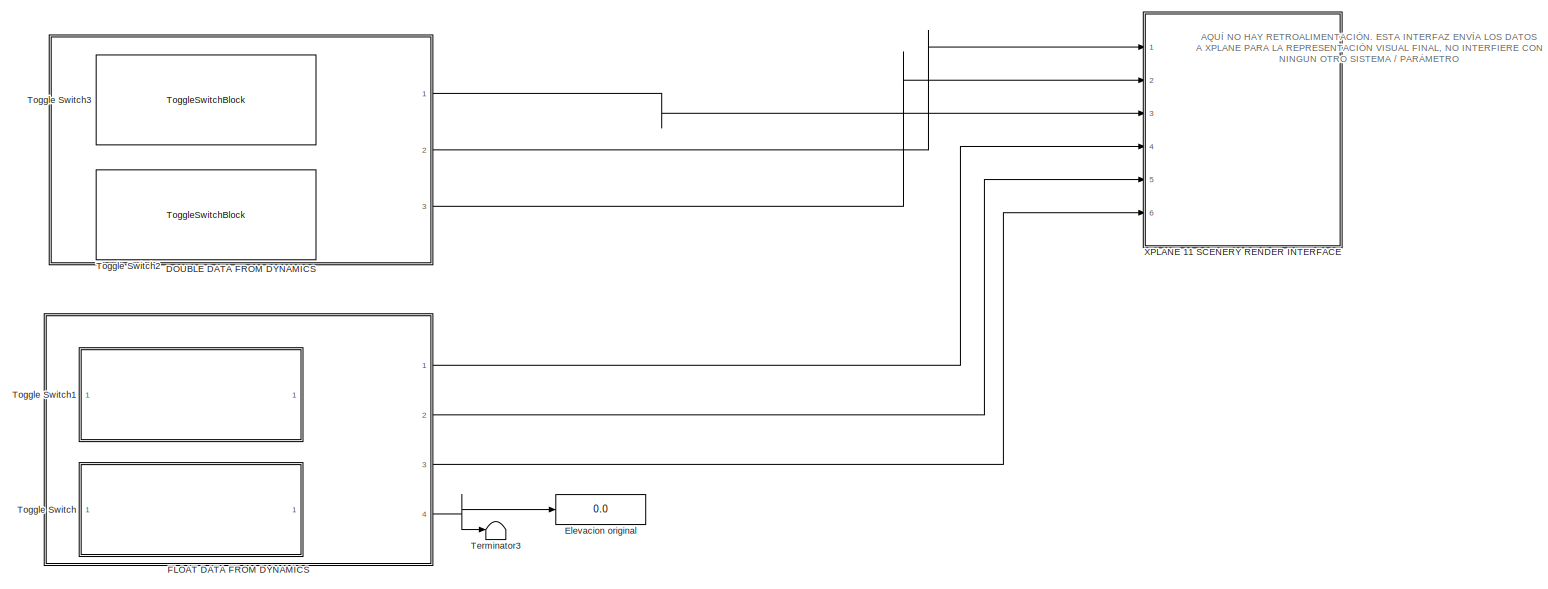
[diagram: root canvas - part 1/3, full width, top band]
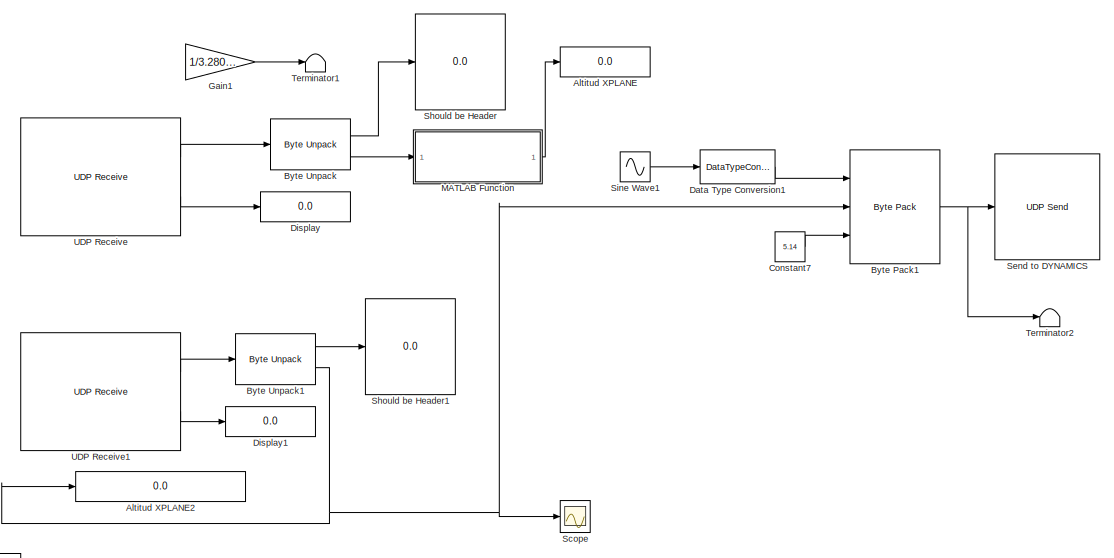
[diagram: root canvas - part 2/3, central region]
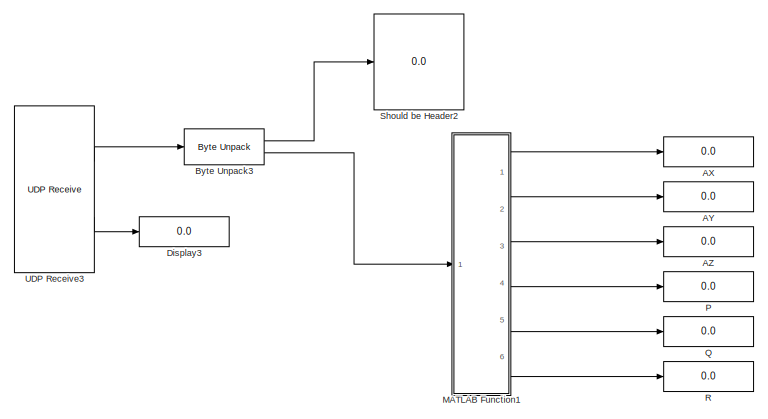
[diagram: root canvas - part 3/3, bottom left region]
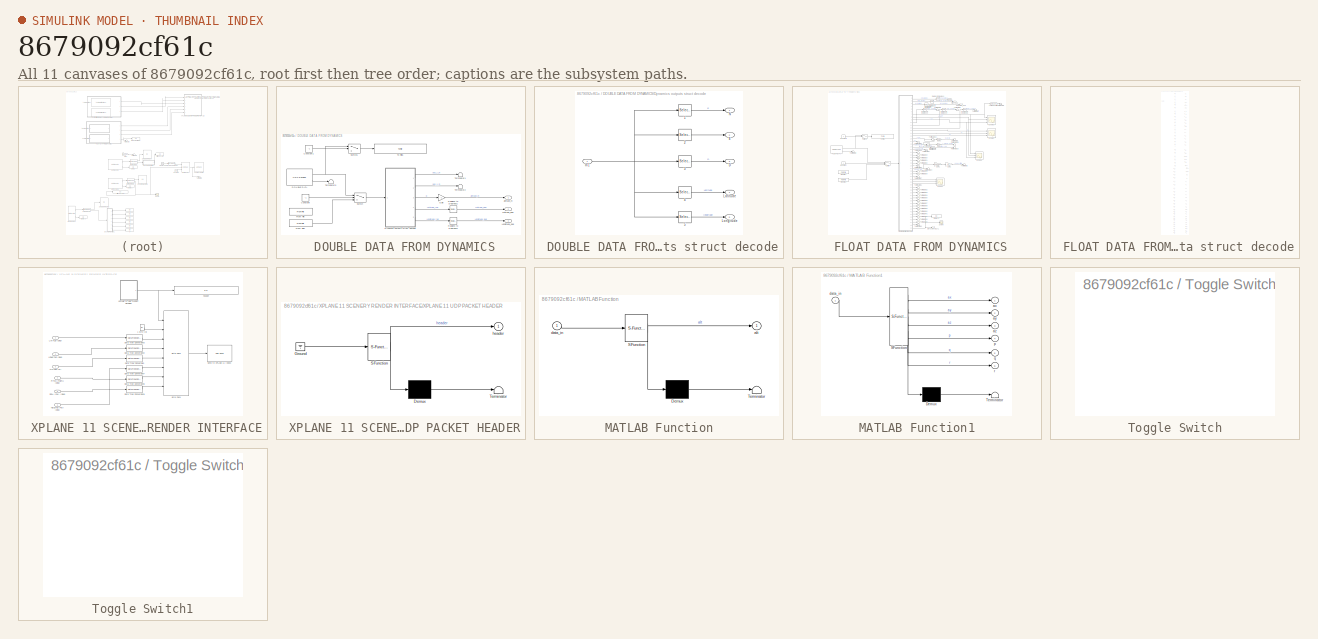
[diagram: thumbnail index - all 11 canvases of the model, root first then tree order]
MODEL slx_8679092cf61c
KIND model
CONFIG AbsTol = auto
CONFIG FixedStep = 0.001
CONFIG MaxStep = auto
CONFIG MinStep = auto
CONFIG RelTol = 1e-3
CONFIG SampleTimeConstraint = Unconstrained
CONFIG Solver = FixedStepAuto
CONFIG SolverMode = Auto
CONFIG SolverName = FixedStepAuto
CONFIG StartTime = 10
CONFIG StopTime = 150
WORKSPACE source: MAT-file member
WORKSPACE g_density = 5
BLOCK [SubSystem]  DOUBLE DATA FROM DYNAMICS
  Commented = on
  Ports = [0, 3]
  RequestExecContextInheritance = off
BLOCK [Constant]  DOUBLE DATA FROM DYNAMICS/Constant
  Value = -1
BLOCK [Constant]  DOUBLE DATA FROM DYNAMICS/Constant1
  Value = -1
BLOCK [Reference]  DOUBLE DATA FROM DYNAMICS/DOUBLE DATA  REF=dspnetwork/UDP Receive
  Commented = on
  Ports = [0, 2]
  SourceBlock = dspnetwork/UDP Receive
  SourceType = UDP Receive
BLOCK [SubSystem]  DOUBLE DATA FROM DYNAMICS/Dynamics outputs struct decode
  Ports = [1, 5]
  RequestExecContextInheritance = off
BLOCK [Selector]  DOUBLE DATA FROM DYNAMICS/Dynamics outputs struct decode/1
  IndexOptions = Index vector (dialog)
  Indices = [1]
  InputPortWidth = 5
  OutputSizes = 1
  Ports = [1, 1]
BLOCK [Selector]  DOUBLE DATA FROM DYNAMICS/Dynamics outputs struct decode/2
  IndexOptions = Index vector (dialog)
  Indices = [2]
  InputPortWidth = 5
  OutputSizes = 1
  Ports = [1, 1]
BLOCK [Selector]  DOUBLE DATA FROM DYNAMICS/Dynamics outputs struct decode/3
  IndexOptions = Index vector (dialog)
  Indices = [3]
  InputPortWidth = 5
  OutputSizes = 1
  Ports = [1, 1]
BLOCK [Selector]  DOUBLE DATA FROM DYNAMICS/Dynamics outputs struct decode/4
  IndexOptions = Index vector (dialog)
  Indices = [4]
  InputPortWidth = 5
  OutputSizes = 1
  Ports = [1, 1]
BLOCK [Selector]  DOUBLE DATA FROM DYNAMICS/Dynamics outputs struct decode/5
  IndexOptions = Index vector (dialog)
  Indices = [5]
  InputPortWidth = 5
  OutputSizes = 1
  Ports = [1, 1]
BLOCK [Outport]  DOUBLE DATA FROM DYNAMICS/Dynamics outputs struct decode/D
  IconDisplay = Port number
  Port = 3
BLOCK [Outport]  DOUBLE DATA FROM DYNAMICS/Dynamics outputs struct decode/E
  IconDisplay = Port number
  Port = 2
BLOCK [Inport]  DOUBLE DATA FROM DYNAMICS/Dynamics outputs struct decode/In1
  IconDisplay = Port number
BLOCK [Outport]  DOUBLE DATA FROM DYNAMICS/Dynamics outputs struct decode/Latitude 
  IconDisplay = Port number
  Port = 4
BLOCK [Outport]  DOUBLE DATA FROM DYNAMICS/Dynamics outputs struct decode/Longitude
  IconDisplay = Port number
  Port = 5
BLOCK [Outport]  DOUBLE DATA FROM DYNAMICS/Dynamics outputs struct decode/N
  IconDisplay = Port number
BLOCK [FromFile]  DOUBLE DATA FROM DYNAMICS/From File
  Commented = on
  FileName = DOUBLEDATA.mat
BLOCK [FromFile]  DOUBLE DATA FROM DYNAMICS/From File1
  FileName = DOUBLEVIRAJES.mat
BLOCK [Gain]  DOUBLE DATA FROM DYNAMICS/Gain
  Gain = -1
  OutDataTypeStr = Inherit: Inherit via internal rule
  ParamDataTypeStr = Inherit: Inherit via internal rule
  SaturateOnIntegerOverflow = off
BLOCK [Outport]  DOUBLE DATA FROM DYNAMICS/Latitude_deg
  IconDisplay = Port number
  Port = 2
BLOCK [Outport]  DOUBLE DATA FROM DYNAMICS/Longitude_deg
  IconDisplay = Port number
  Port = 3
BLOCK [Reference]  DOUBLE DATA FROM DYNAMICS/Radians to Degrees1  REF=simulink_extras/Transformations/Radians
to Degrees
  Ports = [1, 1]
  SourceBlock = simulink_extras/Transformations/Radians\nto Degrees
  SourceType = RadiansToDegrees
BLOCK [Reference]  DOUBLE DATA FROM DYNAMICS/Radians to Degrees2  REF=simulink_extras/Transformations/Radians
to Degrees
  Ports = [1, 1]
  SourceBlock = simulink_extras/Transformations/Radians\nto Degrees
  SourceType = RadiansToDegrees
BLOCK [Switch]  DOUBLE DATA FROM DYNAMICS/Switch
  Criteria = u2 > Threshold
  InputSameDT = off
  SaturateOnIntegerOverflow = off
BLOCK [Switch]  DOUBLE DATA FROM DYNAMICS/Switch1
  Criteria = u2 > Threshold
  InputSameDT = off
  SaturateOnIntegerOverflow = off
BLOCK [Terminator]  DOUBLE DATA FROM DYNAMICS/Terminator1
BLOCK [Terminator]  DOUBLE DATA FROM DYNAMICS/Terminator2
BLOCK [Terminator]  DOUBLE DATA FROM DYNAMICS/Terminator3
BLOCK [ToFile]  DOUBLE DATA FROM DYNAMICS/To File5
  Commented = on
  Decimation = 16
  Filename = DOUBLEDATA_recorded.mat
  MatrixName = DOUBLEDATA_recorded
  Ports = [1]
  SampleTime = 0.001
  SaveFormat = Timeseries
BLOCK [Outport]  DOUBLE DATA FROM DYNAMICS/altitude_m 
  IconDisplay = Port number
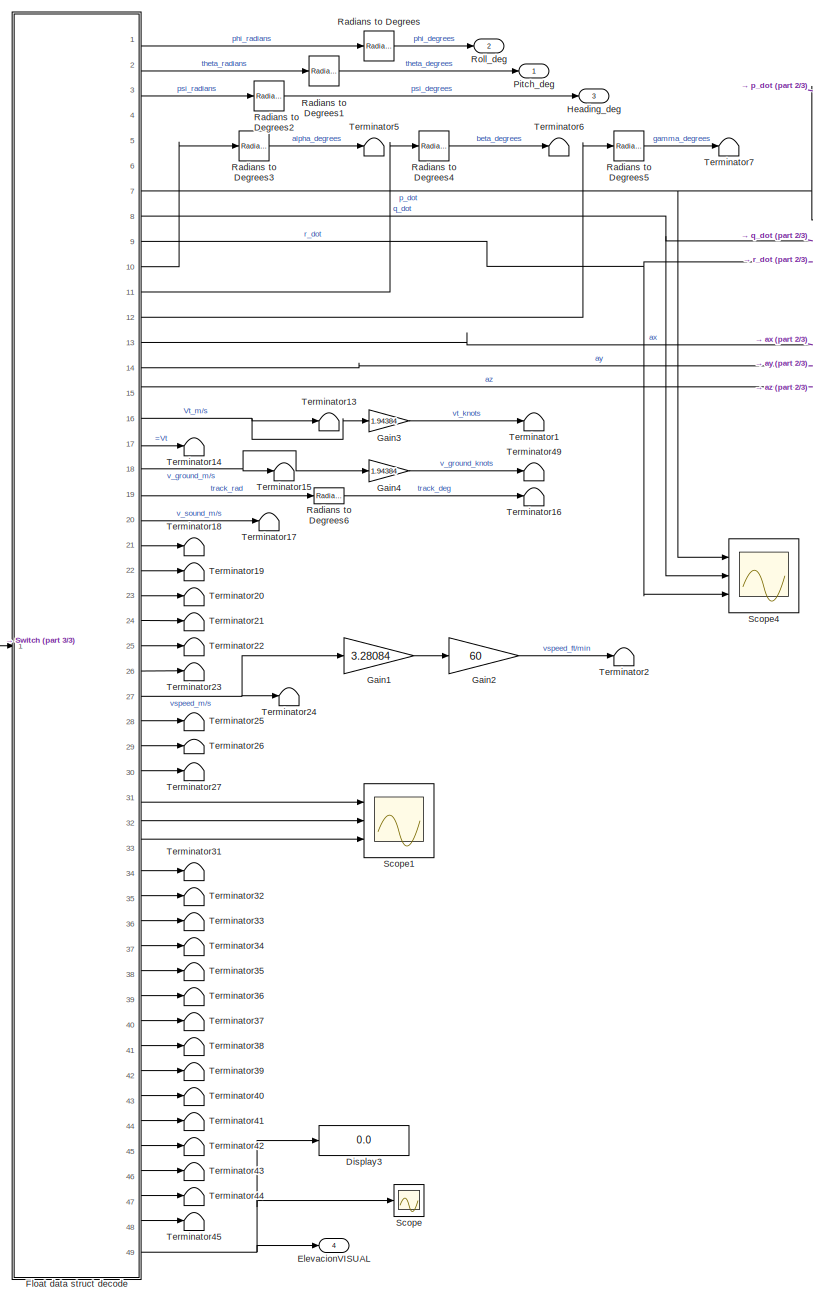
[diagram:  FLOAT DATA FROM DYNAMICS - part 1/3, center side, full height]
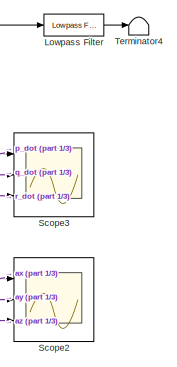
[diagram:  FLOAT DATA FROM DYNAMICS - part 2/3, top right region]
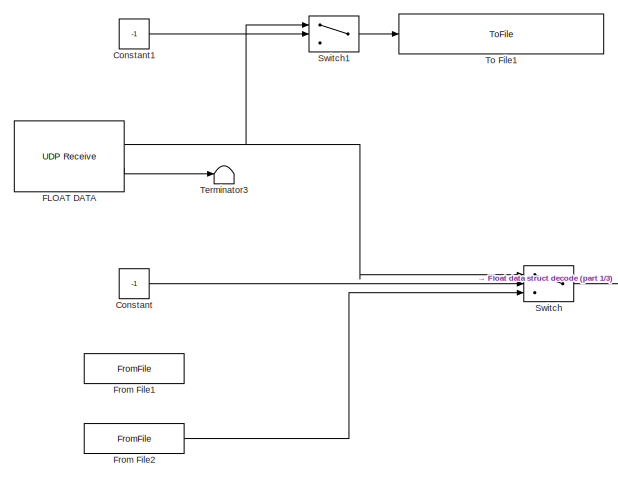
[diagram:  FLOAT DATA FROM DYNAMICS - part 3/3, middle left region]
BLOCK [SubSystem]  FLOAT DATA FROM DYNAMICS
  Ports = [0, 4]
  RequestExecContextInheritance = off
BLOCK [Constant]  FLOAT DATA FROM DYNAMICS/Constant
  Value = -1
BLOCK [Constant]  FLOAT DATA FROM DYNAMICS/Constant1
  Value = -1
BLOCK [Display]  FLOAT DATA FROM DYNAMICS/Display3
  Decimation = 1
  Ports = [1]
BLOCK [Outport]  FLOAT DATA FROM DYNAMICS/ElevacionVISUAL 
  IconDisplay = Port number
  Port = 4
BLOCK [Reference]  FLOAT DATA FROM DYNAMICS/FLOAT DATA  REF=dspnetwork/UDP Receive
  Commented = on
  Ports = [0, 2]
  SourceBlock = dspnetwork/UDP Receive
  SourceType = UDP Receive
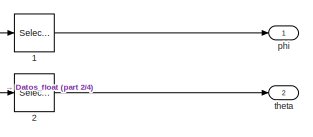
[diagram:  FLOAT DATA FROM DYNAMICS/Float data struct decode - part 1/4, top right region]
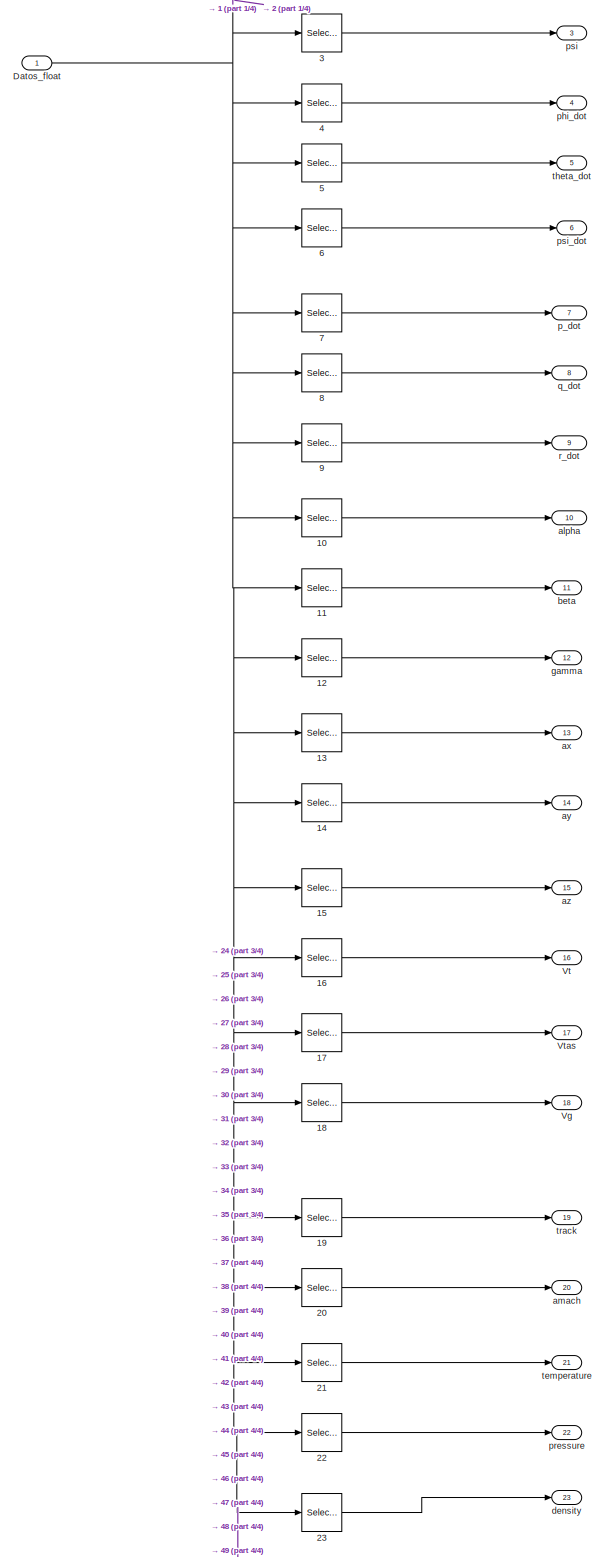
[diagram:  FLOAT DATA FROM DYNAMICS/Float data struct decode - part 2/4, full width, top band]
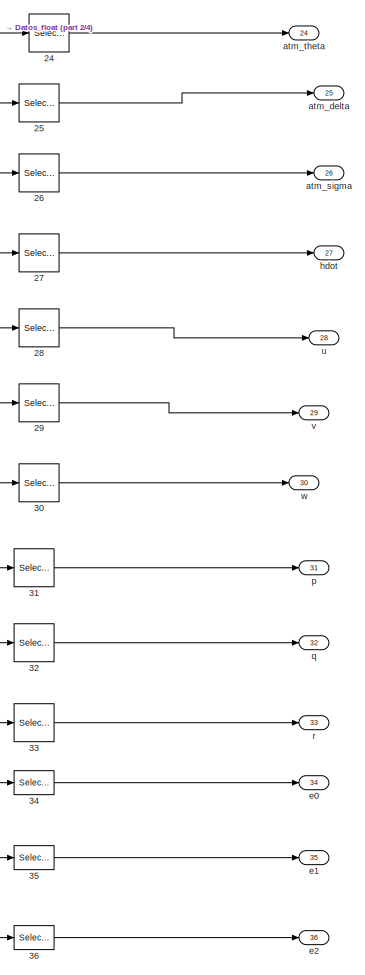
[diagram:  FLOAT DATA FROM DYNAMICS/Float data struct decode - part 3/4, middle right region]
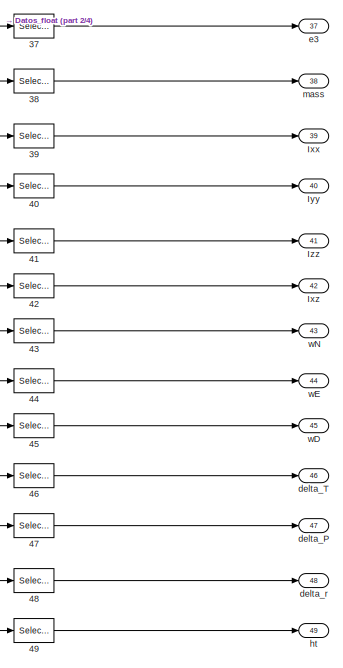
[diagram:  FLOAT DATA FROM DYNAMICS/Float data struct decode - part 4/4, bottom right region]
BLOCK [SubSystem]  FLOAT DATA FROM DYNAMICS/Float data struct decode
  Ports = [1, 49]
  RequestExecContextInheritance = off
BLOCK [Selector]  FLOAT DATA FROM DYNAMICS/Float data struct decode/1
  IndexOptions = Index vector (dialog)
  Indices = [1]
  InputPortWidth = 49
  OutputSizes = 1
  Ports = [1, 1]
BLOCK [Selector]  FLOAT DATA FROM DYNAMICS/Float data struct decode/10
  IndexOptions = Index vector (dialog)
  Indices = [10]
  InputPortWidth = 49
  OutputSizes = 1
  Ports = [1, 1]
BLOCK [Selector]  FLOAT DATA FROM DYNAMICS/Float data struct decode/11
  IndexOptions = Index vector (dialog)
  Indices = [11]
  InputPortWidth = 49
  OutputSizes = 1
  Ports = [1, 1]
BLOCK [Selector]  FLOAT DATA FROM DYNAMICS/Float data struct decode/12
  IndexOptions = Index vector (dialog)
  Indices = [12]
  InputPortWidth = 49
  OutputSizes = 1
  Ports = [1, 1]
BLOCK [Selector]  FLOAT DATA FROM DYNAMICS/Float data struct decode/13
  IndexOptions = Index vector (dialog)
  Indices = [13]
  InputPortWidth = 49
  OutputSizes = 1
  Ports = [1, 1]
BLOCK [Selector]  FLOAT DATA FROM DYNAMICS/Float data struct decode/14
  IndexOptions = Index vector (dialog)
  Indices = [14]
  InputPortWidth = 49
  OutputSizes = 1
  Ports = [1, 1]
BLOCK [Selector]  FLOAT DATA FROM DYNAMICS/Float data struct decode/15
  IndexOptions = Index vector (dialog)
  Indices = [15]
  InputPortWidth = 49
  OutputSizes = 1
  Ports = [1, 1]
BLOCK [Selector]  FLOAT DATA FROM DYNAMICS/Float data struct decode/16
  IndexOptions = Index vector (dialog)
  Indices = [16]
  InputPortWidth = 49
  OutputSizes = 1
  Ports = [1, 1]
BLOCK [Selector]  FLOAT DATA FROM DYNAMICS/Float data struct decode/17
  IndexOptions = Index vector (dialog)
  Indices = [17]
  InputPortWidth = 49
  OutputSizes = 1
  Ports = [1, 1]
BLOCK [Selector]  FLOAT DATA FROM DYNAMICS/Float data struct decode/18
  IndexOptions = Index vector (dialog)
  Indices = [18]
  InputPortWidth = 49
  OutputSizes = 1
  Ports = [1, 1]
BLOCK [Selector]  FLOAT DATA FROM DYNAMICS/Float data struct decode/19
  IndexOptions = Index vector (dialog)
  Indices = [19]
  InputPortWidth = 49
  OutputSizes = 1
  Ports = [1, 1]
BLOCK [Selector]  FLOAT DATA FROM DYNAMICS/Float data struct decode/2
  IndexOptions = Index vector (dialog)
  Indices = [2]
  InputPortWidth = 49
  OutputSizes = 1
  Ports = [1, 1]
BLOCK [Selector]  FLOAT DATA FROM DYNAMICS/Float data struct decode/20
  IndexOptions = Index vector (dialog)
  Indices = [20]
  InputPortWidth = 49
  OutputSizes = 1
  Ports = [1, 1]
BLOCK [Selector]  FLOAT DATA FROM DYNAMICS/Float data struct decode/21
  IndexOptions = Index vector (dialog)
  Indices = [21]
  InputPortWidth = 49
  OutputSizes = 1
  Ports = [1, 1]
BLOCK [Selector]  FLOAT DATA FROM DYNAMICS/Float data struct decode/22
  IndexOptions = Index vector (dialog)
  Indices = [22]
  InputPortWidth = 49
  OutputSizes = 1
  Ports = [1, 1]
BLOCK [Selector]  FLOAT DATA FROM DYNAMICS/Float data struct decode/23
  IndexOptions = Index vector (dialog)
  Indices = [23]
  InputPortWidth = 49
  OutputSizes = 1
  Ports = [1, 1]
BLOCK [Selector]  FLOAT DATA FROM DYNAMICS/Float data struct decode/24
  IndexOptions = Index vector (dialog)
  Indices = [24]
  InputPortWidth = 49
  OutputSizes = 1
  Ports = [1, 1]
BLOCK [Selector]  FLOAT DATA FROM DYNAMICS/Float data struct decode/25
  IndexOptions = Index vector (dialog)
  Indices = [25]
  InputPortWidth = 49
  OutputSizes = 1
  Ports = [1, 1]
BLOCK [Selector]  FLOAT DATA FROM DYNAMICS/Float data struct decode/26
  IndexOptions = Index vector (dialog)
  Indices = [26]
  InputPortWidth = 49
  OutputSizes = 1
  Ports = [1, 1]
BLOCK [Selector]  FLOAT DATA FROM DYNAMICS/Float data struct decode/27
  IndexOptions = Index vector (dialog)
  Indices = [27]
  InputPortWidth = 49
  OutputSizes = 1
  Ports = [1, 1]
BLOCK [Selector]  FLOAT DATA FROM DYNAMICS/Float data struct decode/28
  IndexOptions = Index vector (dialog)
  Indices = [28]
  InputPortWidth = 49
  OutputSizes = 1
  Ports = [1, 1]
BLOCK [Selector]  FLOAT DATA FROM DYNAMICS/Float data struct decode/29
  IndexOptions = Index vector (dialog)
  Indices = [29]
  InputPortWidth = 49
  OutputSizes = 1
  Ports = [1, 1]
BLOCK [Selector]  FLOAT DATA FROM DYNAMICS/Float data struct decode/3
  IndexOptions = Index vector (dialog)
  Indices = [3]
  InputPortWidth = 49
  OutputSizes = 1
  Ports = [1, 1]
BLOCK [Selector]  FLOAT DATA FROM DYNAMICS/Float data struct decode/30
  IndexOptions = Index vector (dialog)
  Indices = [30]
  InputPortWidth = 49
  OutputSizes = 1
  Ports = [1, 1]
BLOCK [Selector]  FLOAT DATA FROM DYNAMICS/Float data struct decode/31
  IndexOptions = Index vector (dialog)
  Indices = [31]
  InputPortWidth = 49
  OutputSizes = 1
  Ports = [1, 1]
BLOCK [Selector]  FLOAT DATA FROM DYNAMICS/Float data struct decode/32
  IndexOptions = Index vector (dialog)
  Indices = [32]
  InputPortWidth = 49
  OutputSizes = 1
  Ports = [1, 1]
BLOCK [Selector]  FLOAT DATA FROM DYNAMICS/Float data struct decode/33
  IndexOptions = Index vector (dialog)
  Indices = [33]
  InputPortWidth = 49
  OutputSizes = 1
  Ports = [1, 1]
BLOCK [Selector]  FLOAT DATA FROM DYNAMICS/Float data struct decode/34
  IndexOptions = Index vector (dialog)
  Indices = [34]
  InputPortWidth = 49
  OutputSizes = 1
  Ports = [1, 1]
BLOCK [Selector]  FLOAT DATA FROM DYNAMICS/Float data struct decode/35
  IndexOptions = Index vector (dialog)
  Indices = [35]
  InputPortWidth = 49
  OutputSizes = 1
  Ports = [1, 1]
BLOCK [Selector]  FLOAT DATA FROM DYNAMICS/Float data struct decode/36
  IndexOptions = Index vector (dialog)
  Indices = [36]
  InputPortWidth = 49
  OutputSizes = 1
  Ports = [1, 1]
BLOCK [Selector]  FLOAT DATA FROM DYNAMICS/Float data struct decode/37
  IndexOptions = Index vector (dialog)
  Indices = [37]
  InputPortWidth = 49
  OutputSizes = 1
  Ports = [1, 1]
BLOCK [Selector]  FLOAT DATA FROM DYNAMICS/Float data struct decode/38
  IndexOptions = Index vector (dialog)
  Indices = [38]
  InputPortWidth = 49
  OutputSizes = 1
  Ports = [1, 1]
BLOCK [Selector]  FLOAT DATA FROM DYNAMICS/Float data struct decode/39
  IndexOptions = Index vector (dialog)
  Indices = [39]
  InputPortWidth = 49
  OutputSizes = 1
  Ports = [1, 1]
BLOCK [Selector]  FLOAT DATA FROM DYNAMICS/Float data struct decode/4
  IndexOptions = Index vector (dialog)
  Indices = [4]
  InputPortWidth = 49
  OutputSizes = 1
  Ports = [1, 1]
BLOCK [Selector]  FLOAT DATA FROM DYNAMICS/Float data struct decode/40
  IndexOptions = Index vector (dialog)
  Indices = [40]
  InputPortWidth = 49
  OutputSizes = 1
  Ports = [1, 1]
BLOCK [Selector]  FLOAT DATA FROM DYNAMICS/Float data struct decode/41
  IndexOptions = Index vector (dialog)
  Indices = [41]
  InputPortWidth = 49
  OutputSizes = 1
  Ports = [1, 1]
BLOCK [Selector]  FLOAT DATA FROM DYNAMICS/Float data struct decode/42
  IndexOptions = Index vector (dialog)
  Indices = [42]
  InputPortWidth = 49
  OutputSizes = 1
  Ports = [1, 1]
BLOCK [Selector]  FLOAT DATA FROM DYNAMICS/Float data struct decode/43
  IndexOptions = Index vector (dialog)
  Indices = [43]
  InputPortWidth = 49
  OutputSizes = 1
  Ports = [1, 1]
BLOCK [Selector]  FLOAT DATA FROM DYNAMICS/Float data struct decode/44
  IndexOptions = Index vector (dialog)
  Indices = [44]
  InputPortWidth = 49
  OutputSizes = 1
  Ports = [1, 1]
BLOCK [Selector]  FLOAT DATA FROM DYNAMICS/Float data struct decode/45
  IndexOptions = Index vector (dialog)
  Indices = [45]
  InputPortWidth = 49
  OutputSizes = 1
  Ports = [1, 1]
BLOCK [Selector]  FLOAT DATA FROM DYNAMICS/Float data struct decode/46
  IndexOptions = Index vector (dialog)
  Indices = [46]
  InputPortWidth = 49
  OutputSizes = 1
  Ports = [1, 1]
BLOCK [Selector]  FLOAT DATA FROM DYNAMICS/Float data struct decode/47
  IndexOptions = Index vector (dialog)
  Indices = [47]
  InputPortWidth = 49
  OutputSizes = 1
  Ports = [1, 1]
BLOCK [Selector]  FLOAT DATA FROM DYNAMICS/Float data struct decode/48
  IndexOptions = Index vector (dialog)
  Indices = [48]
  InputPortWidth = 49
  OutputSizes = 1
  Ports = [1, 1]
BLOCK [Selector]  FLOAT DATA FROM DYNAMICS/Float data struct decode/49
  IndexOptions = Index vector (dialog)
  Indices = [49]
  InputPortWidth = 49
  OutputSizes = 1
  Ports = [1, 1]
BLOCK [Selector]  FLOAT DATA FROM DYNAMICS/Float data struct decode/5
  IndexOptions = Index vector (dialog)
  Indices = [5]
  InputPortWidth = 49
  OutputSizes = 1
  Ports = [1, 1]
BLOCK [Selector]  FLOAT DATA FROM DYNAMICS/Float data struct decode/6
  IndexOptions = Index vector (dialog)
  Indices = [6]
  InputPortWidth = 49
  OutputSizes = 1
  Ports = [1, 1]
BLOCK [Selector]  FLOAT DATA FROM DYNAMICS/Float data struct decode/7
  IndexOptions = Index vector (dialog)
  Indices = [7]
  InputPortWidth = 49
  OutputSizes = 1
  Ports = [1, 1]
BLOCK [Selector]  FLOAT DATA FROM DYNAMICS/Float data struct decode/8
  IndexOptions = Index vector (dialog)
  Indices = [8]
  InputPortWidth = 49
  OutputSizes = 1
  Ports = [1, 1]
BLOCK [Selector]  FLOAT DATA FROM DYNAMICS/Float data struct decode/9
  IndexOptions = Index vector (dialog)
  Indices = [9]
  InputPortWidth = 49
  OutputSizes = 1
  Ports = [1, 1]
BLOCK [Inport]  FLOAT DATA FROM DYNAMICS/Float data struct decode/Datos_float
  IconDisplay = Port number
BLOCK [Outport]  FLOAT DATA FROM DYNAMICS/Float data struct decode/Ixx
  IconDisplay = Port number
  Port = 39
BLOCK [Outport]  FLOAT DATA FROM DYNAMICS/Float data struct decode/Ixz
  IconDisplay = Port number
  Port = 42
BLOCK [Outport]  FLOAT DATA FROM DYNAMICS/Float data struct decode/Iyy
  IconDisplay = Port number
  Port = 40
BLOCK [Outport]  FLOAT DATA FROM DYNAMICS/Float data struct decode/Izz
  IconDisplay = Port number
  Port = 41
BLOCK [Outport]  FLOAT DATA FROM DYNAMICS/Float data struct decode/Vg
  IconDisplay = Port number
  Port = 18
BLOCK [Outport]  FLOAT DATA FROM DYNAMICS/Float data struct decode/Vt
  IconDisplay = Port number
  Port = 16
BLOCK [Outport]  FLOAT DATA FROM DYNAMICS/Float data struct decode/Vtas
  IconDisplay = Port number
  Port = 17
BLOCK [Outport]  FLOAT DATA FROM DYNAMICS/Float data struct decode/alpha
  IconDisplay = Port number
  Port = 10
BLOCK [Outport]  FLOAT DATA FROM DYNAMICS/Float data struct decode/amach
  IconDisplay = Port number
  Port = 20
BLOCK [Outport]  FLOAT DATA FROM DYNAMICS/Float data struct decode/atm_delta
  IconDisplay = Port number
  Port = 25
BLOCK [Outport]  FLOAT DATA FROM DYNAMICS/Float data struct decode/atm_sigma
  IconDisplay = Port number
  Port = 26
BLOCK [Outport]  FLOAT DATA FROM DYNAMICS/Float data struct decode/atm_theta
  IconDisplay = Port number
  Port = 24
BLOCK [Outport]  FLOAT DATA FROM DYNAMICS/Float data struct decode/ax
  IconDisplay = Port number
  Port = 13
BLOCK [Outport]  FLOAT DATA FROM DYNAMICS/Float data struct decode/ay
  IconDisplay = Port number
  Port = 14
BLOCK [Outport]  FLOAT DATA FROM DYNAMICS/Float data struct decode/az
  IconDisplay = Port number
  Port = 15
BLOCK [Outport]  FLOAT DATA FROM DYNAMICS/Float data struct decode/beta
  IconDisplay = Port number
  Port = 11
BLOCK [Outport]  FLOAT DATA FROM DYNAMICS/Float data struct decode/delta_P
  IconDisplay = Port number
  Port = 47
BLOCK [Outport]  FLOAT DATA FROM DYNAMICS/Float data struct decode/delta_T
  IconDisplay = Port number
  Port = 46
BLOCK [Outport]  FLOAT DATA FROM DYNAMICS/Float data struct decode/delta_r
  IconDisplay = Port number
  Port = 48
BLOCK [Outport]  FLOAT DATA FROM DYNAMICS/Float data struct decode/density
  IconDisplay = Port number
  Port = 23
BLOCK [Outport]  FLOAT DATA FROM DYNAMICS/Float data struct decode/e0
  IconDisplay = Port number
  Port = 34
BLOCK [Outport]  FLOAT DATA FROM DYNAMICS/Float data struct decode/e1
  IconDisplay = Port number
  Port = 35
BLOCK [Outport]  FLOAT DATA FROM DYNAMICS/Float data struct decode/e2
  IconDisplay = Port number
  Port = 36
BLOCK [Outport]  FLOAT DATA FROM DYNAMICS/Float data struct decode/e3
  IconDisplay = Port number
  Port = 37
BLOCK [Outport]  FLOAT DATA FROM DYNAMICS/Float data struct decode/gamma
  IconDisplay = Port number
  Port = 12
BLOCK [Outport]  FLOAT DATA FROM DYNAMICS/Float data struct decode/hdot
  IconDisplay = Port number
  Port = 27
BLOCK [Outport]  FLOAT DATA FROM DYNAMICS/Float data struct decode/ht
  IconDisplay = Port number
  Port = 49
BLOCK [Outport]  FLOAT DATA FROM DYNAMICS/Float data struct decode/mass
  IconDisplay = Port number
  Port = 38
BLOCK [Outport]  FLOAT DATA FROM DYNAMICS/Float data struct decode/p
  IconDisplay = Port number
  Port = 31
BLOCK [Outport]  FLOAT DATA FROM DYNAMICS/Float data struct decode/p_dot
  IconDisplay = Port number
  Port = 7
BLOCK [Outport]  FLOAT DATA FROM DYNAMICS/Float data struct decode/phi
  IconDisplay = Port number
BLOCK [Outport]  FLOAT DATA FROM DYNAMICS/Float data struct decode/phi_dot
  IconDisplay = Port number
  Port = 4
BLOCK [Outport]  FLOAT DATA FROM DYNAMICS/Float data struct decode/pressure
  IconDisplay = Port number
  Port = 22
BLOCK [Outport]  FLOAT DATA FROM DYNAMICS/Float data struct decode/psi 
  IconDisplay = Port number
  Port = 3
BLOCK [Outport]  FLOAT DATA FROM DYNAMICS/Float data struct decode/psi_dot
  IconDisplay = Port number
  Port = 6
BLOCK [Outport]  FLOAT DATA FROM DYNAMICS/Float data struct decode/q
  IconDisplay = Port number
  Port = 32
BLOCK [Outport]  FLOAT DATA FROM DYNAMICS/Float data struct decode/q_dot
  IconDisplay = Port number
  Port = 8
BLOCK [Outport]  FLOAT DATA FROM DYNAMICS/Float data struct decode/r
  IconDisplay = Port number
  Port = 33
BLOCK [Outport]  FLOAT DATA FROM DYNAMICS/Float data struct decode/r_dot
  IconDisplay = Port number
  Port = 9
BLOCK [Outport]  FLOAT DATA FROM DYNAMICS/Float data struct decode/temperature
  IconDisplay = Port number
  Port = 21
BLOCK [Outport]  FLOAT DATA FROM DYNAMICS/Float data struct decode/theta
  IconDisplay = Port number
  Port = 2
BLOCK [Outport]  FLOAT DATA FROM DYNAMICS/Float data struct decode/theta_dot
  IconDisplay = Port number
  Port = 5
BLOCK [Outport]  FLOAT DATA FROM DYNAMICS/Float data struct decode/track
  IconDisplay = Port number
  Port = 19
BLOCK [Outport]  FLOAT DATA FROM DYNAMICS/Float data struct decode/u
  IconDisplay = Port number
  Port = 28
BLOCK [Outport]  FLOAT DATA FROM DYNAMICS/Float data struct decode/v
  IconDisplay = Port number
  Port = 29
BLOCK [Outport]  FLOAT DATA FROM DYNAMICS/Float data struct decode/w
  IconDisplay = Port number
  Port = 30
BLOCK [Outport]  FLOAT DATA FROM DYNAMICS/Float data struct decode/wD
  IconDisplay = Port number
  Port = 45
BLOCK [Outport]  FLOAT DATA FROM DYNAMICS/Float data struct decode/wE
  IconDisplay = Port number
  Port = 44
BLOCK [Outport]  FLOAT DATA FROM DYNAMICS/Float data struct decode/wN
  IconDisplay = Port number
  Port = 43
BLOCK [FromFile]  FLOAT DATA FROM DYNAMICS/From File1
  Commented = on
  FileName = FLOATDATA.mat
  SampleTime = 0.001
BLOCK [FromFile]  FLOAT DATA FROM DYNAMICS/From File2
  FileName = FLOATVIRAJES.mat
  SampleTime = 0.001
BLOCK [Gain]  FLOAT DATA FROM DYNAMICS/Gain1
  Gain = 3.28084
  OutDataTypeStr = Inherit: Inherit via internal rule
  ParamDataTypeStr = Inherit: Inherit via internal rule
  SaturateOnIntegerOverflow = off
BLOCK [Gain]  FLOAT DATA FROM DYNAMICS/Gain2
  Gain = 60
  OutDataTypeStr = Inherit: Inherit via internal rule
  ParamDataTypeStr = Inherit: Inherit via internal rule
  SaturateOnIntegerOverflow = off
BLOCK [Gain]  FLOAT DATA FROM DYNAMICS/Gain3
  Gain = 1.94384
  OutDataTypeStr = Inherit: Inherit via internal rule
  ParamDataTypeStr = Inherit: Inherit via internal rule
  SaturateOnIntegerOverflow = off
BLOCK [Gain]  FLOAT DATA FROM DYNAMICS/Gain4
  Gain = 1.94384
  OutDataTypeStr = Inherit: Inherit via internal rule
  ParamDataTypeStr = Inherit: Inherit via internal rule
  SaturateOnIntegerOverflow = off
BLOCK [Outport]  FLOAT DATA FROM DYNAMICS/Heading_deg
  IconDisplay = Port number
  Port = 3
BLOCK [Reference]  FLOAT DATA FROM DYNAMICS/Lowpass Filter  REF=dspfdesign/Lowpass Filter
  Ports = [1, 1]
  SourceBlock = dspfdesign/Lowpass Filter
  SourceType = dsp.LowpassFilter
BLOCK [Outport]  FLOAT DATA FROM DYNAMICS/Pitch_deg
  IconDisplay = Port number
BLOCK [Reference]  FLOAT DATA FROM DYNAMICS/Radians to Degrees  REF=simulink_extras/Transformations/Radians
to Degrees
  Ports = [1, 1]
  SourceBlock = simulink_extras/Transformations/Radians\nto Degrees
  SourceType = RadiansToDegrees
BLOCK [Reference]  FLOAT DATA FROM DYNAMICS/Radians to Degrees1  REF=simulink_extras/Transformations/Radians
to Degrees
  Ports = [1, 1]
  SourceBlock = simulink_extras/Transformations/Radians\nto Degrees
  SourceType = RadiansToDegrees
BLOCK [Reference]  FLOAT DATA FROM DYNAMICS/Radians to Degrees2  REF=simulink_extras/Transformations/Radians
to Degrees
  Ports = [1, 1]
  SourceBlock = simulink_extras/Transformations/Radians\nto Degrees
  SourceType = RadiansToDegrees
BLOCK [Reference]  FLOAT DATA FROM DYNAMICS/Radians to Degrees3  REF=simulink_extras/Transformations/Radians
to Degrees
  Ports = [1, 1]
  SourceBlock = simulink_extras/Transformations/Radians\nto Degrees
  SourceType = RadiansToDegrees
BLOCK [Reference]  FLOAT DATA FROM DYNAMICS/Radians to Degrees4  REF=simulink_extras/Transformations/Radians
to Degrees
  Ports = [1, 1]
  SourceBlock = simulink_extras/Transformations/Radians\nto Degrees
  SourceType = RadiansToDegrees
BLOCK [Reference]  FLOAT DATA FROM DYNAMICS/Radians to Degrees5  REF=simulink_extras/Transformations/Radians
to Degrees
  Ports = [1, 1]
  SourceBlock = simulink_extras/Transformations/Radians\nto Degrees
  SourceType = RadiansToDegrees
BLOCK [Reference]  FLOAT DATA FROM DYNAMICS/Radians to Degrees6  REF=simulink_extras/Transformations/Radians
to Degrees
  Ports = [1, 1]
  SourceBlock = simulink_extras/Transformations/Radians\nto Degrees
  SourceType = RadiansToDegrees
BLOCK [Outport]  FLOAT DATA FROM DYNAMICS/Roll_deg
  IconDisplay = Port number
  Port = 2
BLOCK [Scope]  FLOAT DATA FROM DYNAMICS/Scope
  Floating = off
  NumInputPorts = 1
  Ports = [1]
  ScopeSpecificationString = Simulink.scopes.TimeScopeBlockCfg('CurrentConfiguration', extmgr.ConfigurationSet(extmgr.Configuration('Core','General UI',true),extmgr.Configuration('Core','Source UI',true),extmgr.Configuration('Sources','WiredSimulink',true),extmgr.Configuration('Visuals','Time Domain',true,'SerializedDisplays',{struct('MinYLimReal','-1.00000','MaxYLimReal','1.00000','YLabelReal','','MinYLimMag','0.00000','MaxY...<+1401ch>
BLOCK [Scope]  FLOAT DATA FROM DYNAMICS/Scope1
  Floating = off
  NumInputPorts = 3
  Ports = [3]
  ScopeSpecificationString = Simulink.scopes.TimeScopeBlockCfg('CurrentConfiguration', extmgr.ConfigurationSet(extmgr.Configuration('Core','General UI',true),extmgr.Configuration('Core','Source UI',true),extmgr.Configuration('Sources','WiredSimulink',true,'DataLoggingVariableName','ScopeData1'),extmgr.Configuration('Visuals','Time Domain',true,'SerializedDisplays',{struct('MinYLimReal','-0.35141','MaxYLimReal','0.4354','YLabe...<+1426ch>
BLOCK [Scope]  FLOAT DATA FROM DYNAMICS/Scope2
  Floating = off
  NumInputPorts = 3
  Ports = [3]
  ScopeSpecificationString = Simulink.scopes.TimeScopeBlockCfg('CurrentConfiguration', extmgr.ConfigurationSet(extmgr.Configuration('Core','General UI',true),extmgr.Configuration('Core','Source UI',true),extmgr.Configuration('Sources','WiredSimulink',true,'DataLoggingVariableName','ScopeData1'),extmgr.Configuration('Visuals','Time Domain',true,'SerializedDisplays',{struct('MinYLimReal','-32.81134','MaxYLimReal','9.78237','YLa...<+1444ch>
BLOCK [Scope]  FLOAT DATA FROM DYNAMICS/Scope3
  Floating = off
  NumInputPorts = 3
  Ports = [3]
  ScopeSpecificationString = Simulink.scopes.TimeScopeBlockCfg('CurrentConfiguration', extmgr.ConfigurationSet(extmgr.Configuration('Core','General UI',true),extmgr.Configuration('Core','Source UI',true),extmgr.Configuration('Sources','WiredSimulink',true,'DataLoggingVariableName','ScopeData2'),extmgr.Configuration('Visuals','Time Domain',true,'SerializedDisplays',{struct('MinYLimReal','-1.02572','MaxYLimReal','0.93714','YLab...<+1451ch>
BLOCK [Scope]  FLOAT DATA FROM DYNAMICS/Scope4
  Floating = off
  NumInputPorts = 3
  Ports = [3]
  ScopeSpecificationString = Simulink.scopes.TimeScopeBlockCfg('CurrentConfiguration', extmgr.ConfigurationSet(extmgr.Configuration('Core','General UI',true),extmgr.Configuration('Core','Source UI',true),extmgr.Configuration('Sources','WiredSimulink',true,'DataLoggingVariableName','ScopeData1'),extmgr.Configuration('Visuals','Time Domain',true,'SerializedDisplays',{struct('MinYLimReal','-1.02572','MaxYLimReal','0.93714','YLab...<+1451ch>
BLOCK [Switch]  FLOAT DATA FROM DYNAMICS/Switch
  Criteria = u2 > Threshold
  InputSameDT = off
  SaturateOnIntegerOverflow = off
BLOCK [Switch]  FLOAT DATA FROM DYNAMICS/Switch1
  Criteria = u2 > Threshold
  InputSameDT = off
  SaturateOnIntegerOverflow = off
BLOCK [Terminator]  FLOAT DATA FROM DYNAMICS/Terminator1
BLOCK [Terminator]  FLOAT DATA FROM DYNAMICS/Terminator13
BLOCK [Terminator]  FLOAT DATA FROM DYNAMICS/Terminator14
BLOCK [Terminator]  FLOAT DATA FROM DYNAMICS/Terminator15
BLOCK [Terminator]  FLOAT DATA FROM DYNAMICS/Terminator16
BLOCK [Terminator]  FLOAT DATA FROM DYNAMICS/Terminator17
BLOCK [Terminator]  FLOAT DATA FROM DYNAMICS/Terminator18
BLOCK [Terminator]  FLOAT DATA FROM DYNAMICS/Terminator19
BLOCK [Terminator]  FLOAT DATA FROM DYNAMICS/Terminator2
BLOCK [Terminator]  FLOAT DATA FROM DYNAMICS/Terminator20
BLOCK [Terminator]  FLOAT DATA FROM DYNAMICS/Terminator21
BLOCK [Terminator]  FLOAT DATA FROM DYNAMICS/Terminator22
BLOCK [Terminator]  FLOAT DATA FROM DYNAMICS/Terminator23
BLOCK [Terminator]  FLOAT DATA FROM DYNAMICS/Terminator24
BLOCK [Terminator]  FLOAT DATA FROM DYNAMICS/Terminator25
BLOCK [Terminator]  FLOAT DATA FROM DYNAMICS/Terminator26
BLOCK [Terminator]  FLOAT DATA FROM DYNAMICS/Terminator27
BLOCK [Terminator]  FLOAT DATA FROM DYNAMICS/Terminator3
BLOCK [Terminator]  FLOAT DATA FROM DYNAMICS/Terminator31
BLOCK [Terminator]  FLOAT DATA FROM DYNAMICS/Terminator32
BLOCK [Terminator]  FLOAT DATA FROM DYNAMICS/Terminator33
BLOCK [Terminator]  FLOAT DATA FROM DYNAMICS/Terminator34
BLOCK [Terminator]  FLOAT DATA FROM DYNAMICS/Terminator35
BLOCK [Terminator]  FLOAT DATA FROM DYNAMICS/Terminator36
BLOCK [Terminator]  FLOAT DATA FROM DYNAMICS/Terminator37
BLOCK [Terminator]  FLOAT DATA FROM DYNAMICS/Terminator38
BLOCK [Terminator]  FLOAT DATA FROM DYNAMICS/Terminator39
BLOCK [Terminator]  FLOAT DATA FROM DYNAMICS/Terminator4
BLOCK [Terminator]  FLOAT DATA FROM DYNAMICS/Terminator40
BLOCK [Terminator]  FLOAT DATA FROM DYNAMICS/Terminator41
BLOCK [Terminator]  FLOAT DATA FROM DYNAMICS/Terminator42
BLOCK [Terminator]  FLOAT DATA FROM DYNAMICS/Terminator43
BLOCK [Terminator]  FLOAT DATA FROM DYNAMICS/Terminator44
BLOCK [Terminator]  FLOAT DATA FROM DYNAMICS/Terminator45
BLOCK [Terminator]  FLOAT DATA FROM DYNAMICS/Terminator49
BLOCK [Terminator]  FLOAT DATA FROM DYNAMICS/Terminator5
BLOCK [Terminator]  FLOAT DATA FROM DYNAMICS/Terminator6
BLOCK [Terminator]  FLOAT DATA FROM DYNAMICS/Terminator7
BLOCK [ToFile]  FLOAT DATA FROM DYNAMICS/To File1
  Commented = on
  Decimation = 6
  Filename = FLOATDATA_recorded.mat
  MatrixName = FOATDATA_recorded
  Ports = [1]
  SampleTime = 0.001
  SaveFormat = Timeseries
BLOCK [SubSystem]  XPLANE 11 SCENERY RENDER INTERFACE
  Commented = on
  Ports = [6]
  RequestExecContextInheritance = off
BLOCK [Constant]  XPLANE 11 SCENERY RENDER INTERFACE/1 byte [0]
  OutDataTypeStr = single
  Value = [0]
BLOCK [Inport]  XPLANE 11 SCENERY RENDER INTERFACE/ALTITUD (m)
  IconDisplay = Port number
  Port = 3
BLOCK [Reference]  XPLANE 11 SCENERY RENDER INTERFACE/Byte Pack  REF=etargetslib/Byte Pack
  Ports = [8, 1]
  SourceBlock = etargetslib/Byte Pack
  SourceType = Byte pack
BLOCK [DataTypeConversion]  XPLANE 11 SCENERY RENDER INTERFACE/Data Type Conversion
  OutDataTypeStr = double
  RndMeth = Floor
  SaturateOnIntegerOverflow = off
BLOCK [DataTypeConversion]  XPLANE 11 SCENERY RENDER INTERFACE/Data Type Conversion2
  OutDataTypeStr = double
  RndMeth = Floor
  SaturateOnIntegerOverflow = off
BLOCK [DataTypeConversion]  XPLANE 11 SCENERY RENDER INTERFACE/Data Type Conversion3
  OutDataTypeStr = double
  RndMeth = Floor
  SaturateOnIntegerOverflow = off
BLOCK [DataTypeConversion]  XPLANE 11 SCENERY RENDER INTERFACE/Data Type Conversion7
  OutDataTypeStr = single
  RndMeth = Floor
  SaturateOnIntegerOverflow = off
BLOCK [DataTypeConversion]  XPLANE 11 SCENERY RENDER INTERFACE/Data Type Conversion8
  OutDataTypeStr = single
  RndMeth = Floor
  SaturateOnIntegerOverflow = off
BLOCK [DataTypeConversion]  XPLANE 11 SCENERY RENDER INTERFACE/Data Type Conversion9
  OutDataTypeStr = single
  RndMeth = Floor
  SaturateOnIntegerOverflow = off
BLOCK [Inport]  XPLANE 11 SCENERY RENDER INTERFACE/HEADING (PSI) (Deg)
  IconDisplay = Port number
  Port = 6
BLOCK [Inport]  XPLANE 11 SCENERY RENDER INTERFACE/LATITUD (Deg)
  IconDisplay = Port number
BLOCK [Inport]  XPLANE 11 SCENERY RENDER INTERFACE/LONGITUD (Deg)
  IconDisplay = Port number
  Port = 2
BLOCK [Inport]  XPLANE 11 SCENERY RENDER INTERFACE/PITCH (THETA) (Deg)
  IconDisplay = Port number
  Port = 4
BLOCK [Inport]  XPLANE 11 SCENERY RENDER INTERFACE/ROLL (PHI) (Deg)
  IconDisplay = Port number
  Port = 5
BLOCK [Reference]  XPLANE 11 SCENERY RENDER INTERFACE/Send to XPLANE 11 (VEHX)  REF=dspnetwork/UDP Send
  Ports = [1]
  SourceBlock = dspnetwork/UDP Send
  SourceType = UDP Send
BLOCK [SubSystem]  XPLANE 11 SCENERY RENDER INTERFACE/XPLANE 11 UDP PACKET HEADER
  ErrorFcn = Stateflow.Translate.translate
  PermitHierarchicalResolution = ExplicitOnly
  Ports = [0, 1]
  RequestExecContextInheritance = off
  SFBlockType = MATLAB Function
  TreatAsAtomicUnit = on
BLOCK [Demux]  XPLANE 11 SCENERY RENDER INTERFACE/XPLANE 11 UDP PACKET HEADER/ Demux 
  Outputs = 1
  Ports = [1, 1]
BLOCK [Ground]  XPLANE 11 SCENERY RENDER INTERFACE/XPLANE 11 UDP PACKET HEADER/ Ground 
BLOCK [S-Function]  XPLANE 11 SCENERY RENDER INTERFACE/XPLANE 11 UDP PACKET HEADER/ SFunction 
  EnableBusSupport = on
  FunctionName = sf_sfun
  PortCounts = [1 2]
  Ports = [1, 2]
  SFunctionDeploymentMode = off
  Tag = Stateflow S-Function InterfazOriginalv1Simu2016a 1
BLOCK [Terminator]  XPLANE 11 SCENERY RENDER INTERFACE/XPLANE 11 UDP PACKET HEADER/ Terminator 
BLOCK [Outport]  XPLANE 11 SCENERY RENDER INTERFACE/XPLANE 11 UDP PACKET HEADER/header
  IconDisplay = Port number
BLOCK [Display]  XPLANE 11 SCENERY RENDER INTERFACE/header
  Decimation = 1
  Ports = [1]
BLOCK [Display] AX
  Commented = on
  Decimation = 1
  Ports = [1]
BLOCK [Display] AY
  Commented = on
  Decimation = 1
  Ports = [1]
BLOCK [Display] AZ
  Commented = on
  Decimation = 1
  Ports = [1]
BLOCK [Display] Altitud XPLANE
  Commented = on
  Decimation = 1
  Ports = [1]
BLOCK [Display] Altitud XPLANE2
  Commented = on
  Decimation = 5
  Format = long
  Ports = [1]
BLOCK [Reference] Byte Pack1  REF=etargetslib/Byte Pack
  Commented = on
  Ports = [3, 1]
  SourceBlock = etargetslib/Byte Pack
  SourceType = Byte pack
BLOCK [Reference] Byte Unpack  REF=etargetslib/Byte Unpack
  Commented = on
  Ports = [1, 2]
  SourceBlock = etargetslib/Byte Unpack
  SourceType = Byte Unpack
BLOCK [Reference] Byte Unpack1  REF=etargetslib/Byte Unpack
  Commented = on
  Ports = [1, 2]
  SourceBlock = etargetslib/Byte Unpack
  SourceType = Byte Unpack
BLOCK [Reference] Byte Unpack3  REF=etargetslib/Byte Unpack
  Commented = on
  Ports = [1, 2]
  SourceBlock = etargetslib/Byte Unpack
  SourceType = Byte Unpack
BLOCK [Constant] Constant7
  Commented = on
  OutDataTypeStr = single
  Value = 5.14
BLOCK [DataTypeConversion] Data Type Conversion1
  Commented = on
  OutDataTypeStr = single
  RndMeth = Floor
  SaturateOnIntegerOverflow = off
BLOCK [Display] Display
  Commented = on
  Decimation = 1
  Ports = [1]
BLOCK [Display] Display1
  Commented = on
  Decimation = 1
  Ports = [1]
BLOCK [Display] Display3
  Commented = on
  Decimation = 1
  Ports = [1]
BLOCK [Display] Elevacion original
  Commented = on
  Decimation = 5
  Format = long
  Ports = [1]
BLOCK [Gain] Gain1
  Commented = on
  Gain = 1/3.28084
  OutDataTypeStr = Inherit: Inherit via internal rule
  ParamDataTypeStr = Inherit: Inherit via internal rule
  SaturateOnIntegerOverflow = off
BLOCK [SubSystem] MATLAB Function
  Commented = on
  ErrorFcn = Stateflow.Translate.translate
  PermitHierarchicalResolution = ExplicitOnly
  Ports = [1, 1]
  RequestExecContextInheritance = off
  SFBlockType = MATLAB Function
  TreatAsAtomicUnit = on
BLOCK [Demux] MATLAB Function/ Demux 
  Outputs = 1
  Ports = [1, 1]
BLOCK [S-Function] MATLAB Function/ SFunction 
  EnableBusSupport = on
  FunctionName = sf_sfun
  PortCounts = [1 2]
  Ports = [1, 2]
  SFunctionDeploymentMode = off
  Tag = Stateflow S-Function InterfazOriginalv1Simu2016a 2
BLOCK [Terminator] MATLAB Function/ Terminator 
BLOCK [Outport] MATLAB Function/alt
  IconDisplay = Port number
BLOCK [Inport] MATLAB Function/data_in
  IconDisplay = Port number
BLOCK [SubSystem] MATLAB Function1
  Commented = on
  ErrorFcn = Stateflow.Translate.translate
  PermitHierarchicalResolution = ExplicitOnly
  Ports = [1, 6]
  RequestExecContextInheritance = off
  SFBlockType = MATLAB Function
  TreatAsAtomicUnit = on
BLOCK [Demux] MATLAB Function1/ Demux 
  Outputs = 1
  Ports = [1, 1]
BLOCK [S-Function] MATLAB Function1/ SFunction 
  EnableBusSupport = on
  FunctionName = sf_sfun
  PortCounts = [1 7]
  Ports = [1, 7]
  SFunctionDeploymentMode = off
  Tag = Stateflow S-Function InterfazOriginalv1Simu2016a 3
BLOCK [Terminator] MATLAB Function1/ Terminator 
BLOCK [Outport] MATLAB Function1/ax
  IconDisplay = Port number
BLOCK [Outport] MATLAB Function1/ay
  IconDisplay = Port number
  Port = 2
BLOCK [Outport] MATLAB Function1/az
  IconDisplay = Port number
  Port = 3
BLOCK [Inport] MATLAB Function1/data_in
  IconDisplay = Port number
BLOCK [Outport] MATLAB Function1/p
  IconDisplay = Port number
  Port = 4
BLOCK [Outport] MATLAB Function1/q
  IconDisplay = Port number
  Port = 5
BLOCK [Outport] MATLAB Function1/r
  IconDisplay = Port number
  Port = 6
BLOCK [Display] P
  Commented = on
  Decimation = 1
  Ports = [1]
BLOCK [Display] Q
  Commented = on
  Decimation = 1
  Ports = [1]
BLOCK [Display] R
  Commented = on
  Decimation = 1
  Ports = [1]
BLOCK [Scope] Scope
  Commented = on
  Floating = off
  NumInputPorts = 1
  Ports = [1]
  ScopeSpecificationString = Simulink.scopes.TimeScopeBlockCfg('CurrentConfiguration', extmgr.ConfigurationSet(extmgr.Configuration('Core','General UI',true),extmgr.Configuration('Core','Source UI',true),extmgr.Configuration('Sources','WiredSimulink',true,'DataLoggingVariableName','ScopeData1'),extmgr.Configuration('Visuals','Time Domain',true,'SerializedDisplays',{struct('MinYLimReal','15.65837','MaxYLimReal','16.0641','YLab...<+1419ch>
BLOCK [Reference] Send to DYNAMICS  REF=dspnetwork/UDP Send
  Commented = on
  Ports = [1]
  SourceBlock = dspnetwork/UDP Send
  SourceType = UDP Send
BLOCK [Display] Should be Header
  Commented = on
  Decimation = 1
  Ports = [1]
BLOCK [Display] Should be Header1
  Commented = on
  Decimation = 1
  Ports = [1]
BLOCK [Display] Should be Header2
  Commented = on
  Decimation = 1
  Ports = [1]
BLOCK [Sin] Sine Wave1
  Amplitude = 90
  Commented = on
  Ports = [0, 1]
  SampleTime = 0
BLOCK [Terminator] Terminator1
  Commented = on
BLOCK [Terminator] Terminator2
BLOCK [Terminator] Terminator3
  Commented = on
BLOCK [SubSystem] Toggle Switch
  DialogController = hmiCreateDDGDialog
  IsWebBlock = on
  Ports = []
  RequestExecContextInheritance = off
BLOCK [SubSystem] Toggle Switch1
  DialogController = hmiCreateDDGDialog
  IsWebBlock = on
  Ports = []
  RequestExecContextInheritance = off
BLOCK [ToggleSwitchBlock] Toggle Switch2
  Commented = on
  LabelPosition = Hide
  WebBlockId = 552
BLOCK [ToggleSwitchBlock] Toggle Switch3
  Commented = on
  LabelPosition = Hide
  WebBlockId = 553
BLOCK [Reference] UDP Receive  REF=dspnetwork/UDP Receive
  Commented = on
  Ports = [0, 2]
  SourceBlock = dspnetwork/UDP Receive
  SourceType = UDP Receive
BLOCK [Reference] UDP Receive1  REF=dspnetwork/UDP Receive
  Commented = on
  Ports = [0, 2]
  SourceBlock = dspnetwork/UDP Receive
  SourceType = UDP Receive
BLOCK [Reference] UDP Receive3  REF=dspnetwork/UDP Receive
  Commented = on
  Ports = [0, 2]
  SourceBlock = dspnetwork/UDP Receive
  SourceType = UDP Receive
ANNOTATION (root): AQUÍ NO HAY RETROALIMENTACIÓN. ESTA INTERFAZ ENVÍA LOS DATOS A XPLANE PARA LA REPRESENTACIÓN VISUAL FINAL, NO INTERFIERE CON NINGUN OTRO SISTEMA / PARÁMETRO
LINE  DOUBLE DATA FROM DYNAMICS/Constant1:1 ->  DOUBLE DATA FROM DYNAMICS/Switch1:2
LINE  DOUBLE DATA FROM DYNAMICS/Constant:1 ->  DOUBLE DATA FROM DYNAMICS/Switch:2
NET  DOUBLE DATA FROM DYNAMICS/DOUBLE DATA:1 ->  DOUBLE DATA FROM DYNAMICS/Switch1:1,  DOUBLE DATA FROM DYNAMICS/Switch:1
LINE  DOUBLE DATA FROM DYNAMICS/DOUBLE DATA:2 ->  DOUBLE DATA FROM DYNAMICS/Terminator3:1
LINE  DOUBLE DATA FROM DYNAMICS/Dynamics outputs struct decode/1:1 ->  DOUBLE DATA FROM DYNAMICS/Dynamics outputs struct decode/N:1
LINE  DOUBLE DATA FROM DYNAMICS/Dynamics outputs struct decode/2:1 ->  DOUBLE DATA FROM DYNAMICS/Dynamics outputs struct decode/E:1
LINE  DOUBLE DATA FROM DYNAMICS/Dynamics outputs struct decode/3:1 ->  DOUBLE DATA FROM DYNAMICS/Dynamics outputs struct decode/D:1
LINE  DOUBLE DATA FROM DYNAMICS/Dynamics outputs struct decode/4:1 ->  DOUBLE DATA FROM DYNAMICS/Dynamics outputs struct decode/Latitude :1
LINE  DOUBLE DATA FROM DYNAMICS/Dynamics outputs struct decode/5:1 ->  DOUBLE DATA FROM DYNAMICS/Dynamics outputs struct decode/Longitude:1
NET  DOUBLE DATA FROM DYNAMICS/Dynamics outputs struct decode/In1:1 ->  DOUBLE DATA FROM DYNAMICS/Dynamics outputs struct decode/1:1,  DOUBLE DATA FROM DYNAMICS/Dynamics outputs struct decode/2:1,  DOUBLE DATA FROM DYNAMICS/Dynamics outputs struct decode/3:1,  DOUBLE DATA FROM DYNAMICS/Dynamics outputs struct decode/4:1,  DOUBLE DATA FROM DYNAMICS/Dynamics outputs struct decode/5:1
LINE  DOUBLE DATA FROM DYNAMICS/Dynamics outputs struct decode:1 ->  DOUBLE DATA FROM DYNAMICS/Terminator1:1
LINE  DOUBLE DATA FROM DYNAMICS/Dynamics outputs struct decode:2 ->  DOUBLE DATA FROM DYNAMICS/Terminator2:1
LINE  DOUBLE DATA FROM DYNAMICS/Dynamics outputs struct decode:3 ->  DOUBLE DATA FROM DYNAMICS/Gain:1
LINE  DOUBLE DATA FROM DYNAMICS/Dynamics outputs struct decode:4 ->  DOUBLE DATA FROM DYNAMICS/Radians to Degrees1:1
LINE  DOUBLE DATA FROM DYNAMICS/Dynamics outputs struct decode:5 ->  DOUBLE DATA FROM DYNAMICS/Radians to Degrees2:1
LINE  DOUBLE DATA FROM DYNAMICS/From File1:1 ->  DOUBLE DATA FROM DYNAMICS/Switch:3
LINE  DOUBLE DATA FROM DYNAMICS/Gain:1 ->  DOUBLE DATA FROM DYNAMICS/altitude_m :1
LINE  DOUBLE DATA FROM DYNAMICS/Radians to Degrees1:1 ->  DOUBLE DATA FROM DYNAMICS/Latitude_deg:1
LINE  DOUBLE DATA FROM DYNAMICS/Radians to Degrees2:1 ->  DOUBLE DATA FROM DYNAMICS/Longitude_deg:1
LINE  DOUBLE DATA FROM DYNAMICS/Switch1:1 ->  DOUBLE DATA FROM DYNAMICS/To File5:1
LINE  DOUBLE DATA FROM DYNAMICS/Switch:1 ->  DOUBLE DATA FROM DYNAMICS/Dynamics outputs struct decode:1
LINE  DOUBLE DATA FROM DYNAMICS:1 ->  XPLANE 11 SCENERY RENDER INTERFACE:3
LINE  DOUBLE DATA FROM DYNAMICS:2 ->  XPLANE 11 SCENERY RENDER INTERFACE:1
LINE  DOUBLE DATA FROM DYNAMICS:3 ->  XPLANE 11 SCENERY RENDER INTERFACE:2
LINE  FLOAT DATA FROM DYNAMICS/Constant1:1 ->  FLOAT DATA FROM DYNAMICS/Switch1:2
LINE  FLOAT DATA FROM DYNAMICS/Constant:1 ->  FLOAT DATA FROM DYNAMICS/Switch:2
NET  FLOAT DATA FROM DYNAMICS/FLOAT DATA:1 ->  FLOAT DATA FROM DYNAMICS/Switch1:1,  FLOAT DATA FROM DYNAMICS/Switch:1
LINE  FLOAT DATA FROM DYNAMICS/FLOAT DATA:2 ->  FLOAT DATA FROM DYNAMICS/Terminator3:1
LINE  FLOAT DATA FROM DYNAMICS/Float data struct decode/10:1 ->  FLOAT DATA FROM DYNAMICS/Float data struct decode/alpha:1
LINE  FLOAT DATA FROM DYNAMICS/Float data struct decode/11:1 ->  FLOAT DATA FROM DYNAMICS/Float data struct decode/beta:1
LINE  FLOAT DATA FROM DYNAMICS/Float data struct decode/12:1 ->  FLOAT DATA FROM DYNAMICS/Float data struct decode/gamma:1
LINE  FLOAT DATA FROM DYNAMICS/Float data struct decode/13:1 ->  FLOAT DATA FROM DYNAMICS/Float data struct decode/ax:1
LINE  FLOAT DATA FROM DYNAMICS/Float data struct decode/14:1 ->  FLOAT DATA FROM DYNAMICS/Float data struct decode/ay:1
LINE  FLOAT DATA FROM DYNAMICS/Float data struct decode/15:1 ->  FLOAT DATA FROM DYNAMICS/Float data struct decode/az:1
LINE  FLOAT DATA FROM DYNAMICS/Float data struct decode/16:1 ->  FLOAT DATA FROM DYNAMICS/Float data struct decode/Vt:1
LINE  FLOAT DATA FROM DYNAMICS/Float data struct decode/17:1 ->  FLOAT DATA FROM DYNAMICS/Float data struct decode/Vtas:1
LINE  FLOAT DATA FROM DYNAMICS/Float data struct decode/18:1 ->  FLOAT DATA FROM DYNAMICS/Float data struct decode/Vg:1
LINE  FLOAT DATA FROM DYNAMICS/Float data struct decode/19:1 ->  FLOAT DATA FROM DYNAMICS/Float data struct decode/track:1
LINE  FLOAT DATA FROM DYNAMICS/Float data struct decode/1:1 ->  FLOAT DATA FROM DYNAMICS/Float data struct decode/phi:1
LINE  FLOAT DATA FROM DYNAMICS/Float data struct decode/20:1 ->  FLOAT DATA FROM DYNAMICS/Float data struct decode/amach:1
LINE  FLOAT DATA FROM DYNAMICS/Float data struct decode/21:1 ->  FLOAT DATA FROM DYNAMICS/Float data struct decode/temperature:1
LINE  FLOAT DATA FROM DYNAMICS/Float data struct decode/22:1 ->  FLOAT DATA FROM DYNAMICS/Float data struct decode/pressure:1
LINE  FLOAT DATA FROM DYNAMICS/Float data struct decode/23:1 ->  FLOAT DATA FROM DYNAMICS/Float data struct decode/density:1
LINE  FLOAT DATA FROM DYNAMICS/Float data struct decode/24:1 ->  FLOAT DATA FROM DYNAMICS/Float data struct decode/atm_theta:1
LINE  FLOAT DATA FROM DYNAMICS/Float data struct decode/25:1 ->  FLOAT DATA FROM DYNAMICS/Float data struct decode/atm_delta:1
LINE  FLOAT DATA FROM DYNAMICS/Float data struct decode/26:1 ->  FLOAT DATA FROM DYNAMICS/Float data struct decode/atm_sigma:1
LINE  FLOAT DATA FROM DYNAMICS/Float data struct decode/27:1 ->  FLOAT DATA FROM DYNAMICS/Float data struct decode/hdot:1
LINE  FLOAT DATA FROM DYNAMICS/Float data struct decode/28:1 ->  FLOAT DATA FROM DYNAMICS/Float data struct decode/u:1
LINE  FLOAT DATA FROM DYNAMICS/Float data struct decode/29:1 ->  FLOAT DATA FROM DYNAMICS/Float data struct decode/v:1
LINE  FLOAT DATA FROM DYNAMICS/Float data struct decode/2:1 ->  FLOAT DATA FROM DYNAMICS/Float data struct decode/theta:1
LINE  FLOAT DATA FROM DYNAMICS/Float data struct decode/30:1 ->  FLOAT DATA FROM DYNAMICS/Float data struct decode/w:1
LINE  FLOAT DATA FROM DYNAMICS/Float data struct decode/31:1 ->  FLOAT DATA FROM DYNAMICS/Float data struct decode/p:1
LINE  FLOAT DATA FROM DYNAMICS/Float data struct decode/32:1 ->  FLOAT DATA FROM DYNAMICS/Float data struct decode/q:1
LINE  FLOAT DATA FROM DYNAMICS/Float data struct decode/33:1 ->  FLOAT DATA FROM DYNAMICS/Float data struct decode/r:1
LINE  FLOAT DATA FROM DYNAMICS/Float data struct decode/34:1 ->  FLOAT DATA FROM DYNAMICS/Float data struct decode/e0:1
LINE  FLOAT DATA FROM DYNAMICS/Float data struct decode/35:1 ->  FLOAT DATA FROM DYNAMICS/Float data struct decode/e1:1
LINE  FLOAT DATA FROM DYNAMICS/Float data struct decode/36:1 ->  FLOAT DATA FROM DYNAMICS/Float data struct decode/e2:1
LINE  FLOAT DATA FROM DYNAMICS/Float data struct decode/37:1 ->  FLOAT DATA FROM DYNAMICS/Float data struct decode/e3:1
LINE  FLOAT DATA FROM DYNAMICS/Float data struct decode/38:1 ->  FLOAT DATA FROM DYNAMICS/Float data struct decode/mass:1
LINE  FLOAT DATA FROM DYNAMICS/Float data struct decode/39:1 ->  FLOAT DATA FROM DYNAMICS/Float data struct decode/Ixx:1
LINE  FLOAT DATA FROM DYNAMICS/Float data struct decode/3:1 ->  FLOAT DATA FROM DYNAMICS/Float data struct decode/psi :1
LINE  FLOAT DATA FROM DYNAMICS/Float data struct decode/40:1 ->  FLOAT DATA FROM DYNAMICS/Float data struct decode/Iyy:1
LINE  FLOAT DATA FROM DYNAMICS/Float data struct decode/41:1 ->  FLOAT DATA FROM DYNAMICS/Float data struct decode/Izz:1
LINE  FLOAT DATA FROM DYNAMICS/Float data struct decode/42:1 ->  FLOAT DATA FROM DYNAMICS/Float data struct decode/Ixz:1
LINE  FLOAT DATA FROM DYNAMICS/Float data struct decode/43:1 ->  FLOAT DATA FROM DYNAMICS/Float data struct decode/wN:1
LINE  FLOAT DATA FROM DYNAMICS/Float data struct decode/44:1 ->  FLOAT DATA FROM DYNAMICS/Float data struct decode/wE:1
LINE  FLOAT DATA FROM DYNAMICS/Float data struct decode/45:1 ->  FLOAT DATA FROM DYNAMICS/Float data struct decode/wD:1
LINE  FLOAT DATA FROM DYNAMICS/Float data struct decode/46:1 ->  FLOAT DATA FROM DYNAMICS/Float data struct decode/delta_T:1
LINE  FLOAT DATA FROM DYNAMICS/Float data struct decode/47:1 ->  FLOAT DATA FROM DYNAMICS/Float data struct decode/delta_P:1
LINE  FLOAT DATA FROM DYNAMICS/Float data struct decode/48:1 ->  FLOAT DATA FROM DYNAMICS/Float data struct decode/delta_r:1
LINE  FLOAT DATA FROM DYNAMICS/Float data struct decode/49:1 ->  FLOAT DATA FROM DYNAMICS/Float data struct decode/ht:1
LINE  FLOAT DATA FROM DYNAMICS/Float data struct decode/4:1 ->  FLOAT DATA FROM DYNAMICS/Float data struct decode/phi_dot:1
LINE  FLOAT DATA FROM DYNAMICS/Float data struct decode/5:1 ->  FLOAT DATA FROM DYNAMICS/Float data struct decode/theta_dot:1
LINE  FLOAT DATA FROM DYNAMICS/Float data struct decode/6:1 ->  FLOAT DATA FROM DYNAMICS/Float data struct decode/psi_dot:1
LINE  FLOAT DATA FROM DYNAMICS/Float data struct decode/7:1 ->  FLOAT DATA FROM DYNAMICS/Float data struct decode/p_dot:1
LINE  FLOAT DATA FROM DYNAMICS/Float data struct decode/8:1 ->  FLOAT DATA FROM DYNAMICS/Float data struct decode/q_dot:1
LINE  FLOAT DATA FROM DYNAMICS/Float data struct decode/9:1 ->  FLOAT DATA FROM DYNAMICS/Float data struct decode/r_dot:1
NET  FLOAT DATA FROM DYNAMICS/Float data struct decode/Datos_float:1 ->  FLOAT DATA FROM DYNAMICS/Float data struct decode/10:1,  FLOAT DATA FROM DYNAMICS/Float data struct decode/11:1,  FLOAT DATA FROM DYNAMICS/Float data struct decode/12:1,  FLOAT DATA FROM DYNAMICS/Float data struct decode/13:1,  FLOAT DATA FROM DYNAMICS/Float data struct decode/14:1,  FLOAT DATA FROM DYNAMICS/Float data struct decode/15:1,  FLOAT DATA FROM DYNAMICS/Float data struct decode/16:1,  FLOAT DATA FROM DYNAMICS/Float data struct decode/17:1,  FLOAT DATA FROM DYNAMICS/Float data struct decode/18:1,  FLOAT DATA FROM DYNAMICS/Float data struct decode/19:1,  FLOAT DATA FROM DYNAMICS/Float data struct decode/1:1,  FLOAT DATA FROM DYNAMICS/Float data struct decode/20:1,  FLOAT DATA FROM DYNAMICS/Float data struct decode/21:1,  FLOAT DATA FROM DYNAMICS/Float data struct decode/22:1,  FLOAT DATA FROM DYNAMICS/Float data struct decode/23:1,  FLOAT DATA FROM DYNAMICS/Float data struct decode/24:1,  FLOAT DATA FROM DYNAMICS/Float data struct decode/25:1,  FLOAT DATA FROM DYNAMICS/Float data struct decode/26:1,  FLOAT DATA FROM DYNAMICS/Float data struct decode/27:1,  FLOAT DATA FROM DYNAMICS/Float data struct decode/28:1,  FLOAT DATA FROM DYNAMICS/Float data struct decode/29:1,  FLOAT DATA FROM DYNAMICS/Float data struct decode/2:1,  FLOAT DATA FROM DYNAMICS/Float data struct decode/30:1,  FLOAT DATA FROM DYNAMICS/Float data struct decode/31:1,  FLOAT DATA FROM DYNAMICS/Float data struct decode/32:1,  FLOAT DATA FROM DYNAMICS/Float data struct decode/33:1,  FLOAT DATA FROM DYNAMICS/Float data struct decode/34:1,  FLOAT DATA FROM DYNAMICS/Float data struct decode/35:1,  FLOAT DATA FROM DYNAMICS/Float data struct decode/36:1,  FLOAT DATA FROM DYNAMICS/Float data struct decode/37:1,  FLOAT DATA FROM DYNAMICS/Float data struct decode/38:1,  FLOAT DATA FROM DYNAMICS/Float data struct decode/39:1,  FLOAT DATA FROM DYNAMICS/Float data struct decode/3:1,  FLOAT DATA FROM DYNAMICS/Float data struct decode/40:1,  FLOAT DATA FROM DYNAMICS/Float data struct decode/41:1,  FLOAT DATA FROM DYNAMICS/Float data struct decode/42:1,  FLOAT DATA FROM DYNAMICS/Float data struct decode/43:1,  FLOAT DATA FROM DYNAMICS/Float data struct decode/44:1,  FLOAT DATA FROM DYNAMICS/Float data struct decode/45:1,  FLOAT DATA FROM DYNAMICS/Float data struct decode/46:1,  FLOAT DATA FROM DYNAMICS/Float data struct decode/47:1,  FLOAT DATA FROM DYNAMICS/Float data struct decode/48:1,  FLOAT DATA FROM DYNAMICS/Float data struct decode/49:1,  FLOAT DATA FROM DYNAMICS/Float data struct decode/4:1,  FLOAT DATA FROM DYNAMICS/Float data struct decode/5:1,  FLOAT DATA FROM DYNAMICS/Float data struct decode/6:1,  FLOAT DATA FROM DYNAMICS/Float data struct decode/7:1,  FLOAT DATA FROM DYNAMICS/Float data struct decode/8:1,  FLOAT DATA FROM DYNAMICS/Float data struct decode/9:1
LINE  FLOAT DATA FROM DYNAMICS/Float data struct decode:1 ->  FLOAT DATA FROM DYNAMICS/Radians to Degrees:1
LINE  FLOAT DATA FROM DYNAMICS/Float data struct decode:10 ->  FLOAT DATA FROM DYNAMICS/Radians to Degrees3:1
LINE  FLOAT DATA FROM DYNAMICS/Float data struct decode:11 ->  FLOAT DATA FROM DYNAMICS/Radians to Degrees4:1
LINE  FLOAT DATA FROM DYNAMICS/Float data struct decode:12 ->  FLOAT DATA FROM DYNAMICS/Radians to Degrees5:1
LINE  FLOAT DATA FROM DYNAMICS/Float data struct decode:13 ->  FLOAT DATA FROM DYNAMICS/Scope2:1
LINE  FLOAT DATA FROM DYNAMICS/Float data struct decode:14 ->  FLOAT DATA FROM DYNAMICS/Scope2:2
LINE  FLOAT DATA FROM DYNAMICS/Float data struct decode:15 ->  FLOAT DATA FROM DYNAMICS/Scope2:3
NET  FLOAT DATA FROM DYNAMICS/Float data struct decode:16 ->  FLOAT DATA FROM DYNAMICS/Gain3:1,  FLOAT DATA FROM DYNAMICS/Terminator13:1
LINE  FLOAT DATA FROM DYNAMICS/Float data struct decode:17 ->  FLOAT DATA FROM DYNAMICS/Terminator14:1
NET  FLOAT DATA FROM DYNAMICS/Float data struct decode:18 ->  FLOAT DATA FROM DYNAMICS/Gain4:1,  FLOAT DATA FROM DYNAMICS/Terminator15:1
LINE  FLOAT DATA FROM DYNAMICS/Float data struct decode:19 ->  FLOAT DATA FROM DYNAMICS/Radians to Degrees6:1
LINE  FLOAT DATA FROM DYNAMICS/Float data struct decode:2 ->  FLOAT DATA FROM DYNAMICS/Radians to Degrees1:1
LINE  FLOAT DATA FROM DYNAMICS/Float data struct decode:20 ->  FLOAT DATA FROM DYNAMICS/Terminator17:1
LINE  FLOAT DATA FROM DYNAMICS/Float data struct decode:21 ->  FLOAT DATA FROM DYNAMICS/Terminator18:1
LINE  FLOAT DATA FROM DYNAMICS/Float data struct decode:22 ->  FLOAT DATA FROM DYNAMICS/Terminator19:1
LINE  FLOAT DATA FROM DYNAMICS/Float data struct decode:23 ->  FLOAT DATA FROM DYNAMICS/Terminator20:1
LINE  FLOAT DATA FROM DYNAMICS/Float data struct decode:24 ->  FLOAT DATA FROM DYNAMICS/Terminator21:1
LINE  FLOAT DATA FROM DYNAMICS/Float data struct decode:25 ->  FLOAT DATA FROM DYNAMICS/Terminator22:1
LINE  FLOAT DATA FROM DYNAMICS/Float data struct decode:26 ->  FLOAT DATA FROM DYNAMICS/Terminator23:1
NET  FLOAT DATA FROM DYNAMICS/Float data struct decode:27 ->  FLOAT DATA FROM DYNAMICS/Gain1:1,  FLOAT DATA FROM DYNAMICS/Terminator24:1
LINE  FLOAT DATA FROM DYNAMICS/Float data struct decode:28 ->  FLOAT DATA FROM DYNAMICS/Terminator25:1
LINE  FLOAT DATA FROM DYNAMICS/Float data struct decode:29 ->  FLOAT DATA FROM DYNAMICS/Terminator26:1
LINE  FLOAT DATA FROM DYNAMICS/Float data struct decode:3 ->  FLOAT DATA FROM DYNAMICS/Radians to Degrees2:1
LINE  FLOAT DATA FROM DYNAMICS/Float data struct decode:30 ->  FLOAT DATA FROM DYNAMICS/Terminator27:1
LINE  FLOAT DATA FROM DYNAMICS/Float data struct decode:31 ->  FLOAT DATA FROM DYNAMICS/Scope1:1
LINE  FLOAT DATA FROM DYNAMICS/Float data struct decode:32 ->  FLOAT DATA FROM DYNAMICS/Scope1:2
LINE  FLOAT DATA FROM DYNAMICS/Float data struct decode:33 ->  FLOAT DATA FROM DYNAMICS/Scope1:3
LINE  FLOAT DATA FROM DYNAMICS/Float data struct decode:34 ->  FLOAT DATA FROM DYNAMICS/Terminator31:1
LINE  FLOAT DATA FROM DYNAMICS/Float data struct decode:35 ->  FLOAT DATA FROM DYNAMICS/Terminator32:1
LINE  FLOAT DATA FROM DYNAMICS/Float data struct decode:36 ->  FLOAT DATA FROM DYNAMICS/Terminator33:1
LINE  FLOAT DATA FROM DYNAMICS/Float data struct decode:37 ->  FLOAT DATA FROM DYNAMICS/Terminator34:1
LINE  FLOAT DATA FROM DYNAMICS/Float data struct decode:38 ->  FLOAT DATA FROM DYNAMICS/Terminator35:1
LINE  FLOAT DATA FROM DYNAMICS/Float data struct decode:39 ->  FLOAT DATA FROM DYNAMICS/Terminator36:1
LINE  FLOAT DATA FROM DYNAMICS/Float data struct decode:40 ->  FLOAT DATA FROM DYNAMICS/Terminator37:1
LINE  FLOAT DATA FROM DYNAMICS/Float data struct decode:41 ->  FLOAT DATA FROM DYNAMICS/Terminator38:1
LINE  FLOAT DATA FROM DYNAMICS/Float data struct decode:42 ->  FLOAT DATA FROM DYNAMICS/Terminator39:1
LINE  FLOAT DATA FROM DYNAMICS/Float data struct decode:43 ->  FLOAT DATA FROM DYNAMICS/Terminator40:1
LINE  FLOAT DATA FROM DYNAMICS/Float data struct decode:44 ->  FLOAT DATA FROM DYNAMICS/Terminator41:1
LINE  FLOAT DATA FROM DYNAMICS/Float data struct decode:45 ->  FLOAT DATA FROM DYNAMICS/Terminator42:1
LINE  FLOAT DATA FROM DYNAMICS/Float data struct decode:46 ->  FLOAT DATA FROM DYNAMICS/Terminator43:1
LINE  FLOAT DATA FROM DYNAMICS/Float data struct decode:47 ->  FLOAT DATA FROM DYNAMICS/Terminator44:1
LINE  FLOAT DATA FROM DYNAMICS/Float data struct decode:48 ->  FLOAT DATA FROM DYNAMICS/Terminator45:1
NET  FLOAT DATA FROM DYNAMICS/Float data struct decode:49 ->  FLOAT DATA FROM DYNAMICS/Display3:1,  FLOAT DATA FROM DYNAMICS/ElevacionVISUAL :1,  FLOAT DATA FROM DYNAMICS/Scope:1
NET  FLOAT DATA FROM DYNAMICS/Float data struct decode:7 ->  FLOAT DATA FROM DYNAMICS/Lowpass Filter:1,  FLOAT DATA FROM DYNAMICS/Scope3:1,  FLOAT DATA FROM DYNAMICS/Scope4:1
NET  FLOAT DATA FROM DYNAMICS/Float data struct decode:8 ->  FLOAT DATA FROM DYNAMICS/Scope3:2,  FLOAT DATA FROM DYNAMICS/Scope4:2
NET  FLOAT DATA FROM DYNAMICS/Float data struct decode:9 ->  FLOAT DATA FROM DYNAMICS/Scope3:3,  FLOAT DATA FROM DYNAMICS/Scope4:3
LINE  FLOAT DATA FROM DYNAMICS/From File2:1 ->  FLOAT DATA FROM DYNAMICS/Switch:3
LINE  FLOAT DATA FROM DYNAMICS/Gain1:1 ->  FLOAT DATA FROM DYNAMICS/Gain2:1
LINE  FLOAT DATA FROM DYNAMICS/Gain2:1 ->  FLOAT DATA FROM DYNAMICS/Terminator2:1
LINE  FLOAT DATA FROM DYNAMICS/Gain3:1 ->  FLOAT DATA FROM DYNAMICS/Terminator1:1
LINE  FLOAT DATA FROM DYNAMICS/Gain4:1 ->  FLOAT DATA FROM DYNAMICS/Terminator49:1
LINE  FLOAT DATA FROM DYNAMICS/Lowpass Filter:1 ->  FLOAT DATA FROM DYNAMICS/Terminator4:1
LINE  FLOAT DATA FROM DYNAMICS/Radians to Degrees1:1 ->  FLOAT DATA FROM DYNAMICS/Pitch_deg:1
LINE  FLOAT DATA FROM DYNAMICS/Radians to Degrees2:1 ->  FLOAT DATA FROM DYNAMICS/Heading_deg:1
LINE  FLOAT DATA FROM DYNAMICS/Radians to Degrees3:1 ->  FLOAT DATA FROM DYNAMICS/Terminator5:1
LINE  FLOAT DATA FROM DYNAMICS/Radians to Degrees4:1 ->  FLOAT DATA FROM DYNAMICS/Terminator6:1
LINE  FLOAT DATA FROM DYNAMICS/Radians to Degrees5:1 ->  FLOAT DATA FROM DYNAMICS/Terminator7:1
LINE  FLOAT DATA FROM DYNAMICS/Radians to Degrees6:1 ->  FLOAT DATA FROM DYNAMICS/Terminator16:1
LINE  FLOAT DATA FROM DYNAMICS/Radians to Degrees:1 ->  FLOAT DATA FROM DYNAMICS/Roll_deg:1
LINE  FLOAT DATA FROM DYNAMICS/Switch1:1 ->  FLOAT DATA FROM DYNAMICS/To File1:1
LINE  FLOAT DATA FROM DYNAMICS/Switch:1 ->  FLOAT DATA FROM DYNAMICS/Float data struct decode:1
LINE  FLOAT DATA FROM DYNAMICS:1 ->  XPLANE 11 SCENERY RENDER INTERFACE:4
LINE  FLOAT DATA FROM DYNAMICS:2 ->  XPLANE 11 SCENERY RENDER INTERFACE:5
LINE  FLOAT DATA FROM DYNAMICS:3 ->  XPLANE 11 SCENERY RENDER INTERFACE:6
NET  FLOAT DATA FROM DYNAMICS:4 -> Elevacion original:1, Terminator3:1
LINE  XPLANE 11 SCENERY RENDER INTERFACE/1 byte [0]:1 ->  XPLANE 11 SCENERY RENDER INTERFACE/Byte Pack:2
LINE  XPLANE 11 SCENERY RENDER INTERFACE/ALTITUD (m):1 ->  XPLANE 11 SCENERY RENDER INTERFACE/Data Type Conversion:1
LINE  XPLANE 11 SCENERY RENDER INTERFACE/Byte Pack:1 ->  XPLANE 11 SCENERY RENDER INTERFACE/Send to XPLANE 11 (VEHX):1
LINE  XPLANE 11 SCENERY RENDER INTERFACE/Data Type Conversion2:1 ->  XPLANE 11 SCENERY RENDER INTERFACE/Byte Pack:4
LINE  XPLANE 11 SCENERY RENDER INTERFACE/Data Type Conversion3:1 ->  XPLANE 11 SCENERY RENDER INTERFACE/Byte Pack:3
LINE  XPLANE 11 SCENERY RENDER INTERFACE/Data Type Conversion7:1 ->  XPLANE 11 SCENERY RENDER INTERFACE/Byte Pack:6
LINE  XPLANE 11 SCENERY RENDER INTERFACE/Data Type Conversion8:1 ->  XPLANE 11 SCENERY RENDER INTERFACE/Byte Pack:7
LINE  XPLANE 11 SCENERY RENDER INTERFACE/Data Type Conversion9:1 ->  XPLANE 11 SCENERY RENDER INTERFACE/Byte Pack:8
LINE  XPLANE 11 SCENERY RENDER INTERFACE/Data Type Conversion:1 ->  XPLANE 11 SCENERY RENDER INTERFACE/Byte Pack:5
LINE  XPLANE 11 SCENERY RENDER INTERFACE/HEADING (PSI) (Deg):1 ->  XPLANE 11 SCENERY RENDER INTERFACE/Data Type Conversion7:1
LINE  XPLANE 11 SCENERY RENDER INTERFACE/LATITUD (Deg):1 ->  XPLANE 11 SCENERY RENDER INTERFACE/Data Type Conversion3:1
LINE  XPLANE 11 SCENERY RENDER INTERFACE/LONGITUD (Deg):1 ->  XPLANE 11 SCENERY RENDER INTERFACE/Data Type Conversion2:1
LINE  XPLANE 11 SCENERY RENDER INTERFACE/PITCH (THETA) (Deg):1 ->  XPLANE 11 SCENERY RENDER INTERFACE/Data Type Conversion8:1
LINE  XPLANE 11 SCENERY RENDER INTERFACE/ROLL (PHI) (Deg):1 ->  XPLANE 11 SCENERY RENDER INTERFACE/Data Type Conversion9:1
NET  XPLANE 11 SCENERY RENDER INTERFACE/XPLANE 11 UDP PACKET HEADER:1 ->  XPLANE 11 SCENERY RENDER INTERFACE/Byte Pack:1,  XPLANE 11 SCENERY RENDER INTERFACE/header:1
NET Byte Pack1:1 -> Send to DYNAMICS:1, Terminator2:1
LINE Byte Unpack1:1 -> Should be Header1:1
NET Byte Unpack1:2 -> Altitud XPLANE2:1, Byte Pack1:2, Scope:1
LINE Byte Unpack3:1 -> Should be Header2:1
LINE Byte Unpack3:2 -> MATLAB Function1:1
LINE Byte Unpack:1 -> Should be Header:1
LINE Byte Unpack:2 -> MATLAB Function:1
LINE Constant7:1 -> Byte Pack1:3
LINE Data Type Conversion1:1 -> Byte Pack1:1
LINE Gain1:1 -> Terminator1:1
LINE MATLAB Function1:1 -> AX:1
LINE MATLAB Function1:2 -> AY:1
LINE MATLAB Function1:3 -> AZ:1
LINE MATLAB Function1:4 -> P:1
LINE MATLAB Function1:5 -> Q:1
LINE MATLAB Function1:6 -> R:1
LINE MATLAB Function:1 -> Altitud XPLANE:1
LINE Sine Wave1:1 -> Data Type Conversion1:1
LINE UDP Receive1:1 -> Byte Unpack1:1
LINE UDP Receive1:2 -> Display1:1
LINE UDP Receive3:1 -> Byte Unpack3:1
LINE UDP Receive3:2 -> Display3:1
LINE UDP Receive:1 -> Byte Unpack:1
LINE UDP Receive:2 -> Display:1
note: NET lines group one-source signal fan-out (src -> all destinations, sorted); 1:1 wires keep LINE
CHART 
XPLANE 11 SCENERY RENDER INTERFACE/XPLANE 11 UDP PACKET HEADER states=1 transitions=1
  STATE_LABEL 'eML_blk_kernel()'
  STATE_LABEL "SCRIPT:\nfunction header  = fcn \nheader =[uint8(86) uint8(69) uint8(72) uint8(88) uint8(48)];\n\n %Surface_header = typecast(uint8([uint8(8) uint8(0) uint8(0) uint8(0)]),'single')\n%surfaces_control_cmd = [0 dat_lat dat_lon dat_ele veh_psi_true veh_the veh_phi];\n%Throttle_header = typecast(uint8([uint8(25) uint8(0) uint8(0) uint8(0)]),'single');\n%throttle_cmd = [3.503246160812043e-44 throttle No_Coman...<+67ch>"
CHART MATLAB Function states=1 transitions=1
  STATE_LABEL 'eML_blk_kernel()'
  STATE_LABEL 'SCRIPT:\nfunction alt  = decoder(data_in)\n alt = data_in(1,4);\n alt = data_in(1,4);\n alt = data_in(1,4);\n alt = data_in(1,4);\n alt = data_in(1,4);\n \n\nend\n'
CHART MATLAB Function1 states=1 transitions=1
  STATE_LABEL 'eML_blk_kernel()'
  STATE_LABEL 'SCRIPT:\nfunction [ax, ay, az,...\n    p, q, r] = decoder(data_in)\n\n  p= data_in(5,1); \n  q= data_in(6,1);\n  r= data_in(7,1);\n ax= data_in(2,1);\n ay= data_in(3,1);\n az= data_in(4,1);\n\nend\n'
